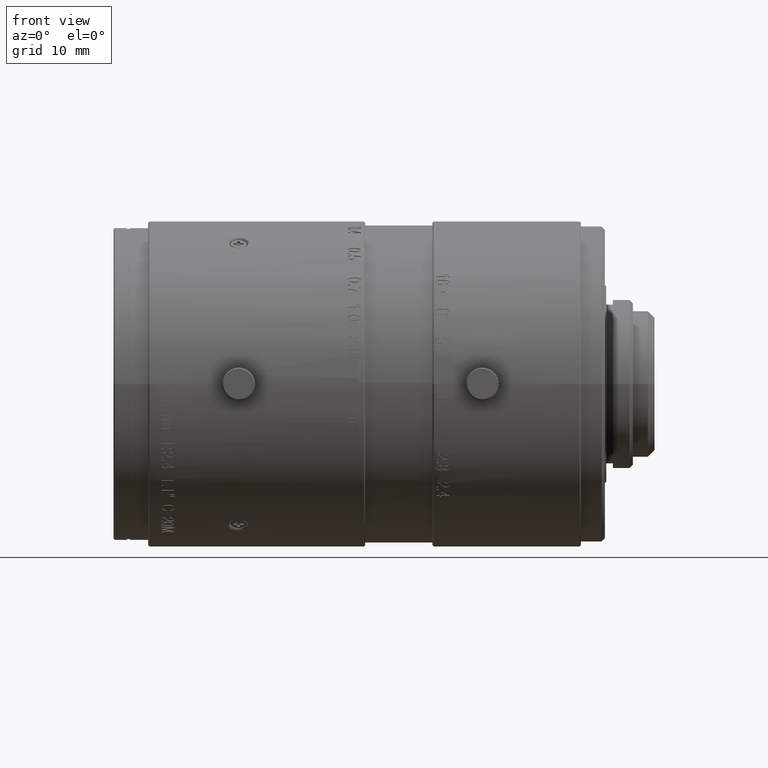
[diagram: clean part render]
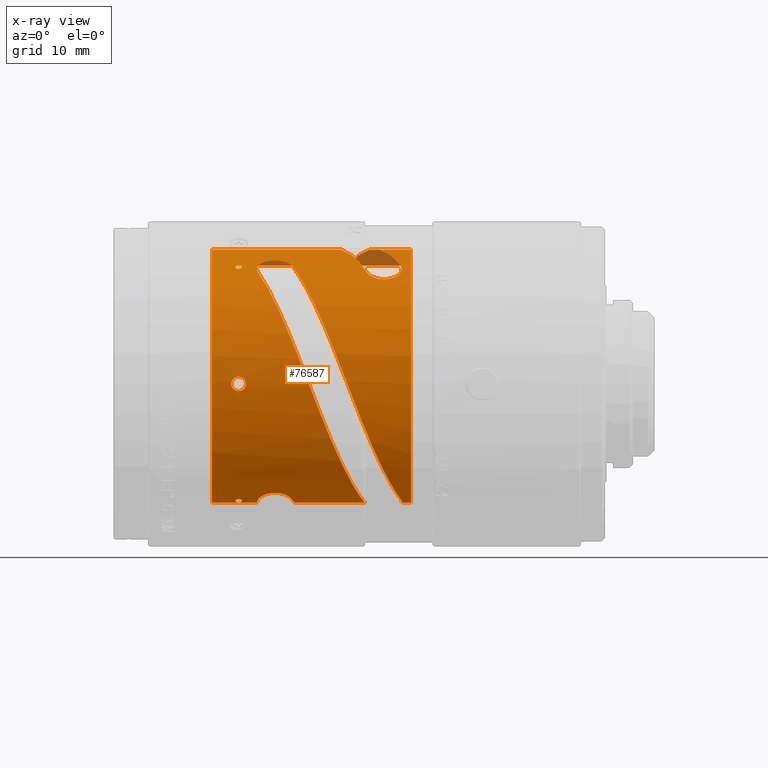
[diagram: x-ray — body ghosted, one internal face saturated and labeled with its STEP entity id]
A machine part, front view, then the same camera in x-ray: the body is ghosted and one INTERNAL B-rep face — a face not visible from any outside direction — is saturated and labeled: STEP entity #76587.
In plain terms, the highlighted cylindrical surface (partial cylindrical patch) has radius 20.25 mm, axis along (1, 0, 0).
Its self-contained STEP definition (entity closure, byte-faithful):
#112 = EDGE_CURVE ( 'NONE', #60766, #63340, #107111, .T. ) ;
#155 = CARTESIAN_POINT ( 'NONE',  ( -53.58698586789378027, -20.24507192438845493, -0.4489718886354276406 ) ) ;
#400 = CARTESIAN_POINT ( 'NONE',  ( -53.84037786304925532, -20.23483107006238768, 0.7867695502579682421 ) ) ;
#663 = DIRECTION ( 'NONE',  ( 0.000000000000000000, -1.000000000000000000, -1.623066920697000185E-11 ) ) ;
#868 = CARTESIAN_POINT ( 'NONE',  ( -38.06852752589999511, 9.672170118227999325, 17.79079904601999829 ) ) ;
#1104 = CARTESIAN_POINT ( 'NONE',  ( -53.48699874881496896, -20.25000257289885042, 0.004127416444607866219 ) ) ;
#1161 = CARTESIAN_POINT ( 'NONE',  ( -54.10230846502917501, -10.01398200027951191, 17.60067176602464301 ) ) ;
#1349 = CARTESIAN_POINT ( 'NONE',  ( -54.58699999998000862, -20.22164838448999546, 1.071184677948000097 ) ) ;
#2055 = CARTESIAN_POINT ( 'NONE',  ( -55.00466737315152699, -20.22557093491379021, -0.9916286536931721018 ) ) ;
#2761 = CARTESIAN_POINT ( 'NONE',  ( -55.64943617683286448, -20.24775742726880523, -0.2854463044495075819 ) ) ;
#2955 = CARTESIAN_POINT ( 'NONE',  ( -30.23394876047999702, -9.819385423967998960, 17.70993640501000144 ) ) ;
#3448 = CARTESIAN_POINT ( 'NONE',  ( -55.60792189533372465, -20.24608835557545916, 0.3984851060672910394 ) ) ;
#3531 = CARTESIAN_POINT ( 'NONE',  ( -34.92766313743350537, -11.93463776804769161, 16.35984698428901751 ) ) ;
#4119 = CARTESIAN_POINT ( 'NONE',  ( -55.68680644737698771, -20.24999569906953312, -0.02247329120616155945 ) ) ;
#4571 = CARTESIAN_POINT ( 'NONE',  ( -34.25275279190629618, -17.62569014094248487, -9.970036911645268063 ) ) ;
#4829 = CARTESIAN_POINT ( 'NONE',  ( -55.31939746311029893, -20.23430867000647027, -0.8001285610020126837 ) ) ;
#5147 = EDGE_CURVE ( 'NONE', #47027, #8257, #38515, .T. ) ;
#5181 = CARTESIAN_POINT ( 'NONE',  ( -39.00945981141959606, -16.23767903404768376, -12.22277169978144329 ) ) ;
#5456 = CARTESIAN_POINT ( 'NONE',  ( -53.73226033919999622, 9.672154331113999248, 17.79077811691999855 ) ) ;
#5520 = CARTESIAN_POINT ( 'NONE',  ( -55.09780892203727376, -20.22771281275427668, 0.9489058670277460417 ) ) ;
#5820 = ORIENTED_EDGE ( 'NONE', *, *, #84482, .T. ) ;
#5916 = CARTESIAN_POINT ( 'NONE',  ( -51.79452541669567012, -11.03016009466760217, 16.98549409628491347 ) ) ;
#6212 = CARTESIAN_POINT ( 'NONE',  ( -55.01127173781080160, -20.22576774822293899, 0.9881092063947694015 ) ) ;
#6606 = CARTESIAN_POINT ( 'NONE',  ( -51.84282457160358604, -10.73620215024878100, 17.17314497878923163 ) ) ;
#6918 = CARTESIAN_POINT ( 'NONE',  ( -54.72039870985197041, -20.22164838448597379, 1.071184677956332543 ) ) ;
#6948 = VERTEX_POINT ( 'NONE', #23813 ) ;
#7513 = CARTESIAN_POINT ( 'NONE',  ( -35.67523993761000156, -9.672107421885998590, -17.79075785971999935 ) ) ;
#7736 = CARTESIAN_POINT ( 'NONE',  ( -51.55531371372621408, -10.71897432366672653, -17.18297825371569587 ) ) ;
#7863 = CARTESIAN_POINT ( 'NONE',  ( -55.35304354144988537, 9.543441225554458285, 17.85995151374201839 ) ) ;
#7970 = CARTESIAN_POINT ( 'NONE',  ( -54.09006325437944440, -10.18154052561782308, -17.50427706831971619 ) ) ;
#8123 = CARTESIAN_POINT ( 'NONE',  ( -54.32450648778467439, -10.50908320569910082, 17.30984064671012135 ) ) ;
#8138 = VERTEX_POINT ( 'NONE', #68248 ) ;
#8257 = VERTEX_POINT ( 'NONE', #98511 ) ;
#8548 = CARTESIAN_POINT ( 'NONE',  ( -54.06007355191290031, 9.379881036147132534, 17.94678968189583301 ) ) ;
#8643 = CARTESIAN_POINT ( 'NONE',  ( -53.88103774653252742, -20.23321180322529500, -0.8287237890180965127 ) ) ;
#8661 = CARTESIAN_POINT ( 'NONE',  ( -55.03808614616426098, -10.31284365723017160, -17.42723819778431604 ) ) ;
#9204 = CARTESIAN_POINT ( 'NONE',  ( -54.08699856976392795, -10.08416876088114655, -17.56058851448009150 ) ) ;
#9361 = CARTESIAN_POINT ( 'NONE',  ( -53.55778836532051912, -20.24646874189476620, -0.3787401840965424205 ) ) ;
#9832 = CARTESIAN_POINT ( 'NONE',  ( -46.97489691551609070, -11.06112306915847654, -16.96225019165940040 ) ) ;
#10266 = CARTESIAN_POINT ( 'NONE',  ( -28.68700000003000028, -20.25000000000000000, 3.840638918006999958E-09 ) ) ;
#10361 = CARTESIAN_POINT ( 'NONE',  ( -54.98602965017767019, -9.861637278663842210, 17.68647385376121051 ) ) ;
#10522 = CARTESIAN_POINT ( 'NONE',  ( -46.68829377728154384, -10.67439891430585241, -17.20865816978835383 ) ) ;
#10595 = CARTESIAN_POINT ( 'NONE',  ( -54.99976210840421231, -9.869076584768523119, -17.68239626361953398 ) ) ;
#10743 = CARTESIAN_POINT ( 'NONE',  ( -53.53840163231143379, -20.24740130901742319, -0.3245485974835494725 ) ) ;
#10916 = CARTESIAN_POINT ( 'NONE',  ( -55.08699999999999619, -10.12498281354000085, 17.53702434922999842 ) ) ;
#10991 = CARTESIAN_POINT ( 'NONE',  ( -53.85497239373417955, -20.23433068319656769, 0.7995869896984646452 ) ) ;
#11010 = CARTESIAN_POINT ( 'NONE',  ( -33.95135394073435720, -17.22817379948558170, -10.64360855708697962 ) ) ;
#11047 = CARTESIAN_POINT ( 'NONE',  ( -54.32483125426030313, -9.735923099768236000, 17.75621644226320939 ) ) ;
#11710 = CARTESIAN_POINT ( 'NONE',  ( -53.48701228525150952, -20.25000255942591565, 0.006056145934462892240 ) ) ;
#12318 = CARTESIAN_POINT ( 'NONE',  ( -38.40532817929999254, -20.24688349944999999, 0.3552264054991000064 ) ) ;
#12405 = CARTESIAN_POINT ( 'NONE',  ( -54.17387429611068939, -20.22553094966566078, 0.9925644221137341905 ) ) ;
#12425 = CARTESIAN_POINT ( 'NONE',  ( -30.31483233864184612, -10.60767852135355049, -17.25061693268586183 ) ) ;
#12516 = VERTEX_POINT ( 'NONE', #12318 ) ;
#13338 = B_SPLINE_CURVE_WITH_KNOTS ( 'NONE', 3,
 ( #37487, #80646, #10522, #126608, #40274, #53659, #9832, #96829, #39583, #84153, #19040, #82747, #83440, #29631, #41684, #72835, #127311, #115293, #138636, #107469, #52276, #30322, #125899, #28922, #7736, #137233, #52972, #128000 ),
 .UNSPECIFIED., .F., .F.,
 ( 4, 2, 2, 2, 2, 2, 2, 2, 2, 2, 2, 2, 2, 4 ),
 ( 0.000000000000000000, 0.06249999999999882039, 0.09374999999999897304, 0.1249999999999991396, 0.1874999999999994449, 0.2499999999999997780, 0.3749999999999984457, 0.4999999999999972244, 0.5624999999999978906, 0.6249999999999986677, 0.6874999999999993339, 0.7500000000000000000, 0.8750000000000000000, 1.000000000000000000 ),
 .UNSPECIFIED. ) ;
#13368 = CARTESIAN_POINT ( 'NONE',  ( -55.35827828513112792, -20.23567319679098730, -0.7645629813641388051 ) ) ;
#13604 = CARTESIAN_POINT ( 'NONE',  ( -30.50444877491347029, -11.79845622417014361, 16.46080652979635417 ) ) ;
#13809 = B_SPLINE_CURVE_WITH_KNOTS ( 'NONE', 3,
 ( #118608, #95978, #107991, #1161, #23069, #44300, #53499, #11047, #109420, #42207, #128520, #107301, #10361, #66948, #37158, #134126, #80996, #122806 ),
 .UNSPECIFIED., .F., .F.,
 ( 4, 2, 2, 2, 2, 2, 2, 2, 4 ),
 ( 0.000000000000000000, 0.06250000000000002776, 0.1250000000000000555, 0.2500000000000004441, 0.5000000000000082157, 0.7500000000000158762, 0.8125000000000139888, 0.8750000000000122125, 1.000000000000000000 ),
 .UNSPECIFIED. ) ;
#14086 = CARTESIAN_POINT ( 'NONE',  ( -55.65110379268055851, -20.24816404223414779, 0.2732110805290204891 ) ) ;
#14368 = CARTESIAN_POINT ( 'NONE',  ( -58.58699999996999708, 9.672157460234000581, 17.79078047935000129 ) ) ;
#14436 = CARTESIAN_POINT ( 'NONE',  ( -45.01121094891500007, -20.16774550249791176, 2.514042518363147405 ) ) ;
#14516 = CARTESIAN_POINT ( 'NONE',  ( -34.31403764527691180, -17.70335950229507560, -9.831255184097964062 ) ) ;
#14727 = VERTEX_POINT ( 'NONE', #122798 ) ;
#14768 = CARTESIAN_POINT ( 'NONE',  ( -54.94556066009414508, -20.22454714530712749, -1.013741174998687766 ) ) ;
#15197 = CARTESIAN_POINT ( 'NONE',  ( -36.50524397645520480, -19.76623499471154233, -4.544611263485206720 ) ) ;
#15416 = CARTESIAN_POINT ( 'NONE',  ( -40.30187517671466679, 0.8837575971754110249, 20.31417814867884175 ) ) ;
#15450 = CARTESIAN_POINT ( 'NONE',  ( -54.86411023788566155, -20.22337568222284787, -1.038134476162589248 ) ) ;
#15918 = CARTESIAN_POINT ( 'NONE',  ( -29.15360295838998894, -9.672157552867952646, -17.79078042899231704 ) ) ;
#16231 = CARTESIAN_POINT ( 'NONE',  ( -32.58583322467389820, -12.77136630889980928, 15.71480556627606262 ) ) ;
#16613 = CARTESIAN_POINT ( 'NONE',  ( -28.68700000002000294, -9.672157471770999493, -17.79078047308000166 ) ) ;
#16919 = CARTESIAN_POINT ( 'NONE',  ( -31.89343832831000114, -12.64071423202999966, 15.82007760025000032 ) ) ;
#17022 = CARTESIAN_POINT ( 'NONE',  ( -54.63415192287552458, -9.688912291687261202, -17.78166116480397108 ) ) ;
#17870 = CARTESIAN_POINT ( 'NONE',  ( -54.08699999999999619, -10.15367771258777196, -17.52045728583735240 ) ) ;
#18019 = VECTOR ( 'NONE', #123641, 1000.000000000000114 ) ;
#18447 = EDGE_CURVE ( 'NONE', #59494, #40643, #53839, .T. ) ;
#18473 = CARTESIAN_POINT ( 'NONE',  ( -55.05867216711585144, 9.351534774876071765, 17.96139862900063378 ) ) ;
#18526 = CARTESIAN_POINT ( 'NONE',  ( -28.68699999997999939, 9.672158667655999409, 17.79077982292000115 ) ) ;
#18563 = CARTESIAN_POINT ( 'NONE',  ( -53.49372870015782411, -20.24959747884583194, -0.1373366704068358923 ) ) ;
#18580 = CARTESIAN_POINT ( 'NONE',  ( -54.18551638399385695, -10.38794776998228819, -17.38261409103830957 ) ) ;
#18662 = FACE_BOUND ( 'NONE', #107407, .T. ) ;
#19002 = CARTESIAN_POINT ( 'NONE',  ( -54.58699999999999619, -20.22160170557999948, -1.072065511424000084 ) ) ;
#19040 = CARTESIAN_POINT ( 'NONE',  ( -47.60026106487331532, -11.55704758480943894, -16.62840776465477433 ) ) ;
#19274 = CARTESIAN_POINT ( 'NONE',  ( -54.98606380144982353, -10.38615511981674189, -17.38364255200721331 ) ) ;
#19609 = CARTESIAN_POINT ( 'NONE',  ( -55.43051460478380221, -20.23831799894905714, 0.6875975944456902411 ) ) ;
#19860 = CARTESIAN_POINT ( 'NONE',  ( -54.02422902434584984, 9.400582309044565932, 17.93606443362906333 ) ) ;
#19950 = CARTESIAN_POINT ( 'NONE',  ( -54.16037988215730081, -20.22577035940841839, -0.9880231399362990885 ) ) ;
#20006 = CARTESIAN_POINT ( 'NONE',  ( -49.32248572307290857, -8.183439907634740607, 18.52280346916371556 ) ) ;
#20127 = CARTESIAN_POINT ( 'NONE',  ( -54.71927848195728927, -10.55477109102447386, 17.28176227212526683 ) ) ;
#20314 = CARTESIAN_POINT ( 'NONE',  ( -42.34376599891701431, -19.84151240629610768, -4.401449064626079988 ) ) ;
#20561 = EDGE_CURVE ( 'NONE', #90733, #65173, #30436, .T. ) ;
#20939 = CARTESIAN_POINT ( 'NONE',  ( -33.73858186591164099, -16.93370764926862293, -11.11069518868614203 ) ) ;
#21298 = VERTEX_POINT ( 'NONE', #10266 ) ;
#21543 = CARTESIAN_POINT ( 'NONE',  ( -54.08700000000000330, -10.12498281138999978, 17.53702435046999852 ) ) ;
#21555 = CARTESIAN_POINT ( 'NONE',  ( -54.08700000000000330, -10.12502556649000063, -17.53699966578000158 ) ) ;
#21613 = CARTESIAN_POINT ( 'NONE',  ( -54.16573212733529630, -20.22568025862699770, 0.9892976452669046683 ) ) ;
#21801 = CIRCLE ( 'NONE', #118958, 20.25000000000000711 ) ;
#22107 = CARTESIAN_POINT ( 'NONE',  ( -46.57415991789000742, -9.818858430891001632, 17.71023354304999842 ) ) ;
#22296 = CARTESIAN_POINT ( 'NONE',  ( -53.48706794225010697, -20.25000162226153577, 0.01230786144144024180 ) ) ;
#22823 = CARTESIAN_POINT ( 'NONE',  ( -47.62640629069997544, -8.586698639587387660, 18.33998794576995550 ) ) ;
#23011 = CARTESIAN_POINT ( 'NONE',  ( -53.49203925168411189, -20.24968663514228595, 0.1049910737905451891 ) ) ;
#23069 = CARTESIAN_POINT ( 'NONE',  ( -54.11089571506722251, -9.988741912770390030, 17.61500778274696799 ) ) ;
#23705 = CARTESIAN_POINT ( 'NONE',  ( -54.22848829240941626, -20.22459030381214973, 1.012881083791907555 ) ) ;
#23813 = CARTESIAN_POINT ( 'NONE',  ( -46.57376073884999812, -10.42773539424999996, -17.35885644552000073 ) ) ;
#23970 = CARTESIAN_POINT ( 'NONE',  ( -55.00011950954677786, -20.22548785097806245, -0.9934428786829480051 ) ) ;
#24409 = CARTESIAN_POINT ( 'NONE',  ( -34.30993986290484088, -17.69819538151698524, -9.840551043312379065 ) ) ;
#24660 = CARTESIAN_POINT ( 'NONE',  ( -55.68509446541854402, -20.24988552974513212, -0.06464225761173195139 ) ) ;
#24846 = CARTESIAN_POINT ( 'NONE',  ( -51.67982332390999289, -11.30400288310999990, 16.80123466942999855 ) ) ;
#24927 = VERTEX_POINT ( 'NONE', #51446 ) ;
#24945 = VERTEX_POINT ( 'NONE', #117239 ) ;
#25320 = LINE ( 'NONE', #81160, #18019 ) ;
#25373 = CARTESIAN_POINT ( 'NONE',  ( -54.91835017092328286, -20.22413557385354466, -1.022386188698118925 ) ) ;
#25727 = CARTESIAN_POINT ( 'NONE',  ( -36.34201486142171689, -11.19281476709540613, -16.96405806483901202 ) ) ;
#25811 = CARTESIAN_POINT ( 'NONE',  ( -34.31696568438540140, -17.70704694259926271, -9.824611487606947691 ) ) ;
#26055 = CARTESIAN_POINT ( 'NONE',  ( -55.68201099994679026, -20.24968303960888605, -0.1052887763576877272 ) ) ;
#26276 = CARTESIAN_POINT ( 'NONE',  ( -31.24845663825995246, -12.40568674124875237, 16.00678534441428624 ) ) ;
#26488 = CARTESIAN_POINT ( 'NONE',  ( -37.38196509655512045, -20.15096120814730796, -2.301369112091325775 ) ) ;
#26741 = CARTESIAN_POINT ( 'NONE',  ( -55.04089796381357758, -20.22624302642163485, -0.9769059665125261471 ) ) ;
#26768 = CARTESIAN_POINT ( 'NONE',  ( -54.08046846729000379, -9.672157342574854155, -17.79078054332124736 ) ) ;
#27722 = CIRCLE ( 'NONE', #64221, 20.25000000000000000 ) ;
#27935 = CARTESIAN_POINT ( 'NONE',  ( -28.68700000003000028, 0.000000000000000000, 9.228173781423002128E-13 ) ) ;
#28206 = ORIENTED_EDGE ( 'NONE', *, *, #135916, .T. ) ;
#28922 = CARTESIAN_POINT ( 'NONE',  ( -51.39848942542752752, -10.94699103710340182, -17.03771924345146971 ) ) ;
#28994 = CARTESIAN_POINT ( 'NONE',  ( -54.35949167796231052, -9.732834404722330746, -17.75778854586917532 ) ) ;
#29418 = CARTESIAN_POINT ( 'NONE',  ( -42.71748086311717429, -9.672157762806646630, -17.79078031485724409 ) ) ;
#29631 = CARTESIAN_POINT ( 'NONE',  ( -48.94161384035984241, -11.94684823270755025, -16.35050107972040578 ) ) ;
#29865 = CARTESIAN_POINT ( 'NONE',  ( -54.08700000000000330, -10.12502556649000063, -17.53699966578000158 ) ) ;
#30206 = CARTESIAN_POINT ( 'NONE',  ( -55.37747634928580709, -20.23632129430400894, 0.7448083985015249153 ) ) ;
#30322 = CARTESIAN_POINT ( 'NONE',  ( -50.97940885039174219, -11.34201863678694089, -16.77591149774586654 ) ) ;
#30436 = CIRCLE ( 'NONE', #102708, 20.25000000000000000 ) ;
#30551 = CARTESIAN_POINT ( 'NONE',  ( -53.72922888632181326, -20.23884692761780002, -0.6714587878449755909 ) ) ;
#30607 = CARTESIAN_POINT ( 'NONE',  ( -50.66078358691486727, -8.607088348365685704, 18.33129193123405187 ) ) ;
#30695 = EDGE_CURVE ( 'NONE', #79223, #55631, #75263, .T. ) ;
#30897 = ORIENTED_EDGE ( 'NONE', *, *, #18447, .F. ) ;
#31286 = CARTESIAN_POINT ( 'NONE',  ( -47.34005220529471103, -8.782857592247566458, 18.24813329974550768 ) ) ;
#31408 = CARTESIAN_POINT ( 'NONE',  ( -54.20857454193922109, -10.40792315457371409, 17.37061290436654204 ) ) ;
#31502 = CARTESIAN_POINT ( 'NONE',  ( -33.19957022003491431, -16.13339862344156472, -12.25796765934027555 ) ) ;
#32442 = EDGE_CURVE ( 'NONE', #49646, #63118, #47895, .T. ) ;
#32718 = CARTESIAN_POINT ( 'NONE',  ( -48.26564597375506338, -8.304793506746197096, 18.46935180747778560 ) ) ;
#32802 = ORIENTED_EDGE ( 'NONE', *, *, #48221, .T. ) ;
#32906 = CARTESIAN_POINT ( 'NONE',  ( -54.13393300006044484, -20.22626984841394560, 0.9763681629668459205 ) ) ;
#33604 = CARTESIAN_POINT ( 'NONE',  ( -53.90278775961660074, -20.23274443705136605, 0.8390133345811876531 ) ) ;
#33617 = EDGE_LOOP ( 'NONE', ( #60830, #60998 ) ) ;
#34433 = VERTEX_POINT ( 'NONE', #121050 ) ;
#34459 = B_SPLINE_CURVE_WITH_KNOTS ( 'NONE', 3,
 ( #22107, #96423, #139605, #31286, #22823, #32718, #131088, #20006, #128275, #66005 ),
 .UNSPECIFIED., .F., .F.,
 ( 4, 2, 2, 2, 4 ),
 ( 0.000000000000000000, 0.2500000000000000000, 0.5000000000000000000, 0.7500000000000000000, 1.000000000000000000 ),
 .UNSPECIFIED. ) ;
#35288 = ORIENTED_EDGE ( 'NONE', *, *, #77858, .T. ) ;
#35720 = EDGE_CURVE ( 'NONE', #24945, #137577, #96400, .T. ) ;
#35827 = CARTESIAN_POINT ( 'NONE',  ( -30.23396391597999866, -10.42759891337000155, -17.35878118473000242 ) ) ;
#36648 = CARTESIAN_POINT ( 'NONE',  ( -43.13654071289989389, 8.055909452329673925, 18.66947198889990389 ) ) ;
#36651 = CARTESIAN_POINT ( 'NONE',  ( -46.57415991789000742, -9.818858430891001632, 17.71023354304999842 ) ) ;
#37158 = CARTESIAN_POINT ( 'NONE',  ( -55.03810789468710141, -9.936117624097231982, 17.64474258285675035 ) ) ;
#37375 = CARTESIAN_POINT ( 'NONE',  ( -55.68700112540657443, -20.25000236800773123, -0.005003706150306269293 ) ) ;
#37487 = CARTESIAN_POINT ( 'NONE',  ( -46.57376073884999812, -10.42773539424999996, -17.35885644552000073 ) ) ;
#37493 = ORIENTED_EDGE ( 'NONE', *, *, #106537, .T. ) ;
#37684 = VERTEX_POINT ( 'NONE', #82171 ) ;
#37803 = CARTESIAN_POINT ( 'NONE',  ( -35.43456556738033214, -18.94647465122174523, -7.202453377417000979 ) ) ;
#38057 = CARTESIAN_POINT ( 'NONE',  ( -55.02534905900320439, -20.22604671171806245, 0.9822776189555311177 ) ) ;
#38515 = B_SPLINE_CURVE_WITH_KNOTS ( 'NONE', 3,
 ( #16613, #15918, #59755, #134796 ),
 .UNSPECIFIED., .F., .F.,
 ( 4, 4 ),
 ( 0.000000000000000000, 1.000000000000000000 ),
 .UNSPECIFIED. ) ;
#38599 = CARTESIAN_POINT ( 'NONE',  ( -30.23396391597999866, -10.42759891337000155, -17.35878118473000242 ) ) ;
#38627 = CARTESIAN_POINT ( 'NONE',  ( -50.01391521147999697, -8.334826601122998113, 18.45516662530999952 ) ) ;
#38779 = CARTESIAN_POINT ( 'NONE',  ( -55.01354371573951596, -20.22581162766156737, 0.9871788555002483090 ) ) ;
#39313 = B_SPLINE_CURVE_WITH_KNOTS ( 'NONE', 3,
 ( #75428, #12425, #96626, #52771, #42166, #118572, #107955, #128476, #31502, #117877, #20939, #11010, #122762, #112836, #4571, #124118, #102223, #24409, #14516, #45656, #25811, #90190, #99436, #80272, #132689, #37803, #57659, #15197, #26488, #78201, #100818 ),
 .UNSPECIFIED., .F., .F.,
 ( 4, 2, 2, 2, 2, 2, 1, 1, 1, 1, 1, 1, 1, 2, 2, 2, 2, 2, 4 ),
 ( 0.000000000000000000, 0.1250000000000414113, 0.2500000000000828226, 0.3750000000001242340, 0.4375000000001451617, 0.4687500000001557643, 0.4843750000001610934, 0.4921875000001636469, 0.4960937500001648126, 0.4980468750001652567, 0.4990234375001653677, 0.4995117187501655898, 0.4997558593751655898, 0.4998779296876655898, 0.5000000000001656453, 0.6250000000001242340, 0.7500000000000828226, 0.8750000000000414113, 1.000000000000000000 ),
 .UNSPECIFIED. ) ;
#39583 = CARTESIAN_POINT ( 'NONE',  ( -47.23650085512421271, -11.31170317539403136, -16.79638296579911128 ) ) ;
#39897 = FACE_BOUND ( 'NONE', #119609, .T. ) ;
#40022 = CARTESIAN_POINT ( 'NONE',  ( -28.68699999997999939, 9.672158667655999409, 17.79077982292000115 ) ) ;
#40158 = CARTESIAN_POINT ( 'NONE',  ( -55.56145225813125421, -20.24382444360606570, 0.5014176815743065507 ) ) ;
#40274 = CARTESIAN_POINT ( 'NONE',  ( -46.84183805092241926, -10.90126840547672948, -17.06543240593236632 ) ) ;
#40405 = CARTESIAN_POINT ( 'NONE',  ( -55.03629773567573835, 9.341198041975681932, 17.96678045871069784 ) ) ;
#40643 = VERTEX_POINT ( 'NONE', #19002 ) ;
#40687 = CARTESIAN_POINT ( 'NONE',  ( -54.13587724731554829, -10.31265388836679264, 17.42735044447966786 ) ) ;
#40729 = CARTESIAN_POINT ( 'NONE',  ( -34.94135168392666912, 9.672158410437152298, 17.79077996275845663 ) ) ;
#40873 = CARTESIAN_POINT ( 'NONE',  ( -54.58699999998000862, -20.22164838448999546, 1.071184677948000097 ) ) ;
#41141 = EDGE_CURVE ( 'NONE', #129427, #12516, #39313, .T. ) ;
#41383 = CARTESIAN_POINT ( 'NONE',  ( -54.18797276438622390, -10.38606757621839449, 17.38369488430507914 ) ) ;
#41569 = CARTESIAN_POINT ( 'NONE',  ( -47.01179466141349650, -18.87070861114900211, 7.546835426239048239 ) ) ;
#41684 = CARTESIAN_POINT ( 'NONE',  ( -49.25951993220930802, -11.94919973159748139, -16.34876092088588706 ) ) ;
#41700 = CARTESIAN_POINT ( 'NONE',  ( -39.76680013573166406, -19.95237976709429617, 3.884175338755466278 ) ) ;
#41812 = CARTESIAN_POINT ( 'NONE',  ( -54.66427239123227366, 9.246638900410017570, 18.01562026419750850 ) ) ;
#41903 = CARTESIAN_POINT ( 'NONE',  ( -53.54682001516390244, -20.24699520027905564, -0.3496949108991440625 ) ) ;
#42166 = CARTESIAN_POINT ( 'NONE',  ( -31.15726472461225782, -12.41672813314880841, -16.02084971087387899 ) ) ;
#42207 = CARTESIAN_POINT ( 'NONE',  ( -54.71961118782674305, -9.688807815186342154, 17.78171822780119982 ) ) ;
#42480 = VERTEX_POINT ( 'NONE', #75280 ) ;
#43305 = CARTESIAN_POINT ( 'NONE',  ( -54.16269820896859244, -20.22572554693483582, -0.9889726784676607929 ) ) ;
#44242 = CARTESIAN_POINT ( 'NONE',  ( -53.48702198210511227, -20.24995882612300591, -0.06832051009178712053 ) ) ;
#44300 = CARTESIAN_POINT ( 'NONE',  ( -54.14942951807557847, -9.907639088376791747, 17.66083362809870749 ) ) ;
#44371 = EDGE_CURVE ( 'NONE', #137577, #122717, #63823, .T. ) ;
#44441 = VERTEX_POINT ( 'NONE', #121138 ) ;
#44689 = CARTESIAN_POINT ( 'NONE',  ( -32.84547501562004612, -3.472201747691262774, 20.02193961891266838 ) ) ;
#44931 = CARTESIAN_POINT ( 'NONE',  ( -54.30999505011128292, -20.22341947873820800, 1.037283488354251437 ) ) ;
#45173 = CARTESIAN_POINT ( 'NONE',  ( -41.01058527357906058, 2.733091832864721571, 20.14887268386918606 ) ) ;
#45637 = CARTESIAN_POINT ( 'NONE',  ( -54.52123932728974864, -20.22164838448930624, 1.071184677947168096 ) ) ;
#45656 = CARTESIAN_POINT ( 'NONE',  ( -34.31579439450436553, -17.70557205253146549, -9.827269234250632479 ) ) ;
#45874 = CARTESIAN_POINT ( 'NONE',  ( -41.12827209216333557, -18.97819917553522018, 7.280949971414633737 ) ) ;
#46592 = CARTESIAN_POINT ( 'NONE',  ( -55.60560138679836228, -20.24597757541924636, 0.4040589555884348538 ) ) ;
#47027 = VERTEX_POINT ( 'NONE', #113766 ) ;
#47232 = CARTESIAN_POINT ( 'NONE',  ( -43.84511967131000176, 9.672166636925998873, 17.79080192969000151 ) ) ;
#47263 = CARTESIAN_POINT ( 'NONE',  ( -55.68698770631331030, -20.25000224560927720, -0.006885607939229118277 ) ) ;
#47895 = B_SPLINE_CURVE_WITH_KNOTS ( 'NONE', 3,
 ( #47232, #36648, #57192, #45173, #15416, #68518, #110282, #77730, #67824, #121574 ),
 .UNSPECIFIED., .F., .F.,
 ( 4, 2, 2, 2, 4 ),
 ( 0.000000000000000000, 0.2500000000000000000, 0.5000000000000000000, 0.7500000000000000000, 1.000000000000000000 ),
 .UNSPECIFIED. ) ;
#47978 = CARTESIAN_POINT ( 'NONE',  ( -55.57872922411083039, -20.24426785151877795, -0.4837617811707674575 ) ) ;
#48221 = EDGE_CURVE ( 'NONE', #8257, #129427, #71700, .T. ) ;
#48278 = B_SPLINE_CURVE_WITH_KNOTS ( 'NONE', 3,
 ( #80051, #67382, #26276, #110544, #13604, #112616, #70149, #59516, #56750, #89297 ),
 .UNSPECIFIED., .F., .F.,
 ( 4, 2, 2, 2, 4 ),
 ( 0.000000000000000000, 0.2500000000000000000, 0.5000000000000000000, 0.7500000000000000000, 1.000000000000000000 ),
 .UNSPECIFIED. ) ;
#48338 = CARTESIAN_POINT ( 'NONE',  ( -37.00887609892119201, -12.60679035117748903, -15.94136774179668059 ) ) ;
#49349 = CARTESIAN_POINT ( 'NONE',  ( -55.12599467029217237, -20.22843667503720155, 0.9343139746518409616 ) ) ;
#49596 = CARTESIAN_POINT ( 'NONE',  ( -54.00668023919941874, 9.411428480180171974, 17.93041053888154934 ) ) ;
#49646 = VERTEX_POINT ( 'NONE', #91115 ) ;
#49835 = EDGE_CURVE ( 'NONE', #34433, #125927, #13809, .T. ) ;
#49989 = CARTESIAN_POINT ( 'NONE',  ( -50.43654678323667184, 9.672158502919456780, 17.79077991247895341 ) ) ;
#50309 = CARTESIAN_POINT ( 'NONE',  ( -54.47364511493165651, 9.252116256762759505, 18.01274153466862771 ) ) ;
#50419 = CARTESIAN_POINT ( 'NONE',  ( -54.11092312733293852, -10.26078126414079428, -17.45794463986925038 ) ) ;
#50548 = DIRECTION ( 'NONE',  ( 1.000000000000000000, -2.740879571499295071E-14, -2.731092400656594806E-12 ) ) ;
#50764 = CARTESIAN_POINT ( 'NONE',  ( -55.44433171522787518, -20.23885902019184968, 0.6711313623440381404 ) ) ;
#50914 = ORIENTED_EDGE ( 'NONE', *, *, #44371, .T. ) ;
#51118 = CARTESIAN_POINT ( 'NONE',  ( -54.32476191693733369, -10.50942712473286988, -17.30963221876411495 ) ) ;
#51446 = CARTESIAN_POINT ( 'NONE',  ( -53.73226033919999622, 9.672154331113999248, 17.79077811691999855 ) ) ;
#51447 = CARTESIAN_POINT ( 'NONE',  ( -55.50491649811536377, -20.24133680373845223, 0.5908941101088993619 ) ) ;
#51692 = CARTESIAN_POINT ( 'NONE',  ( -54.40759018732580898, 9.260117617272472401, 18.00855000579721832 ) ) ;
#51808 = CARTESIAN_POINT ( 'NONE',  ( -55.07477153841644935, -10.23638485979843260, -17.47233318720770967 ) ) ;
#52276 = CARTESIAN_POINT ( 'NONE',  ( -50.73796819192335050, -11.50791566755210660, -16.66254693394538222 ) ) ;
#52292 = CARTESIAN_POINT ( 'NONE',  ( -38.40532817929999254, -20.24688349944999999, 0.3552264054991000064 ) ) ;
#52309 = DIRECTION ( 'NONE',  ( 1.000000000000000000, 6.840263945224380603E-23, -4.214406601476999716E-12 ) ) ;
#52347 = CARTESIAN_POINT ( 'NONE',  ( -54.48299575357745539, -9.694736733092021552, -17.77859590833216430 ) ) ;
#52749 = ORIENTED_EDGE ( 'NONE', *, *, #111070, .F. ) ;
#52771 = CARTESIAN_POINT ( 'NONE',  ( -30.88178679120427361, -11.83592089511540912, -16.43996207705306034 ) ) ;
#52972 = CARTESIAN_POINT ( 'NONE',  ( -51.82762735634046436, -9.945239877523786021, -17.64231616221948684 ) ) ;
#53499 = CARTESIAN_POINT ( 'NONE',  ( -54.18557092310484791, -9.859831467820315609, 17.68752254170713911 ) ) ;
#53544 = CARTESIAN_POINT ( 'NONE',  ( -51.67982332390999289, -11.30400288310999990, 16.80123466942999855 ) ) ;
#53659 = CARTESIAN_POINT ( 'NONE',  ( -46.92913250655831803, -11.00944387367534105, -16.99584601136655593 ) ) ;
#53839 = B_SPLINE_CURVE_WITH_KNOTS ( 'NONE', 3,
 ( #65477, #45637, #139792, #88100, #44931, #75409, #23705, #109361, #86021, #12405, #118553, #21613, #32906, #64777, #98020, #107934, #33604, #66887, #10991, #400, #54134, #130578, #97314, #86726, #76791, #129888, #119950, #76097, #23011, #98712, #108649, #119238, #22296, #11710, #1104, #44242, #18563, #105591, #64532, #10743, #41903, #9361, #138858, #73743, #127528, #155, #72350, #126843, #116892, #30551, #106299, #107694, #115522, #139549, #95679, #8643, #116215, #61717, #85072, #107004, #53887, #126116, #97058, #117608, #19950, #43305, #63111, #104906, #96366, #128928 ),
 .UNSPECIFIED., .F., .F.,
 ( 4, 2, 2, 1, 1, 1, 2, 2, 2, 2, 2, 1, 2, 2, 2, 2, 2, 1, 1, 2, 2, 2, 2, 1, 1, 2, 2, 2, 2, 2, 2, 2, 2, 2, 2, 1, 1, 2, 2, 4 ),
 ( 0.000000000000000000, 0.06250000000013328227, 0.09375000000019696744, 0.1093750000002260692, 0.1171875000002405576, 0.1210937500002477879, 0.1230468750002513822, 0.1250000000002549627, 0.1875000000002455813, 0.2187500000002409184, 0.2343750000002404466, 0.2421875000002402523, 0.2460937500002385869, 0.2500000000002369216, 0.3750000000001848521, 0.4375000000001588174, 0.4687500000001452172, 0.4843750000001385003, 0.4921875000001351141, 0.4960937500001335043, 0.5000000000001318945, 0.5625000000001060263, 0.5937500000000925926, 0.6093750000000858202, 0.6171875000000824896, 0.6210937500000819345, 0.6250000000000813793, 0.6875000000000701661, 0.7187500000000630607, 0.7343750000000578426, 0.7421875000000552891, 0.7500000000000527356, 0.8125000000000349720, 0.8437500000000287548, 0.8593750000000290878, 0.8671875000000250910, 0.8710937500000230926, 0.8730468750000220934, 0.8750000000000212053, 1.000000000000000000 ),
 .UNSPECIFIED. ) ;
#53887 = CARTESIAN_POINT ( 'NONE',  ( -54.12434738754556918, -20.22652772204566318, -0.9725737512035840249 ) ) ;
#54134 = CARTESIAN_POINT ( 'NONE',  ( -53.82563693809131422, -20.23535189863398998, 0.7730829339370984821 ) ) ;
#55089 = CARTESIAN_POINT ( 'NONE',  ( -45.21268796145835012, -12.79648900577995896, 15.79348427540336353 ) ) ;
#55631 = VERTEX_POINT ( 'NONE', #137163 ) ;
#56476 = CARTESIAN_POINT ( 'NONE',  ( -43.85121600502668571, -15.33832987515646984, 13.33866234198038292 ) ) ;
#56750 = CARTESIAN_POINT ( 'NONE',  ( -30.11954821491341150, -10.10753041335150471, 17.55018170961929513 ) ) ;
#57192 = CARTESIAN_POINT ( 'NONE',  ( -42.42791804167167413, 6.319332068946290626, 19.32648192506906426 ) ) ;
#57226 = CARTESIAN_POINT ( 'NONE',  ( -55.61621179164355055, -20.24648451820818451, 0.3778893052884513271 ) ) ;
#57313 = CARTESIAN_POINT ( 'NONE',  ( -35.03059289817552724, -11.82000799592075069, 16.44302823206619024 ) ) ;
#57412 = CARTESIAN_POINT ( 'NONE',  ( -34.80411970697505097, 1.610628368817631051, 20.25685383611180868 ) ) ;
#57555 = ORIENTED_EDGE ( 'NONE', *, *, #49835, .T. ) ;
#57659 = CARTESIAN_POINT ( 'NONE',  ( -36.11576407062025140, -19.50212609217291160, -5.523704757518723696 ) ) ;
#57904 = CARTESIAN_POINT ( 'NONE',  ( -55.18290515670619101, -20.22999820832442097, -0.9018920188778957181 ) ) ;
#57927 = CARTESIAN_POINT ( 'NONE',  ( -58.58700000002999531, -9.672157471771999582, -17.79078047308000166 ) ) ;
#59075 = DIRECTION ( 'NONE',  ( 2.412507779281917116E-12, 0.4776374650693828716, 0.8785570282924689556 ) ) ;
#59284 = CARTESIAN_POINT ( 'NONE',  ( -54.72184398464766986, -20.22193983762149117, -1.066330341214593469 ) ) ;
#59375 = CARTESIAN_POINT ( 'NONE',  ( -34.57269211887265215, -12.25527562790840364, 16.12269851171316759 ) ) ;
#59494 = VERTEX_POINT ( 'NONE', #1349 ) ;
#59516 = CARTESIAN_POINT ( 'NONE',  ( -30.07129866336509139, -10.40787442278671016, 17.37408014962724323 ) ) ;
#59755 = CARTESIAN_POINT ( 'NONE',  ( -29.62020591675999270, -9.672157633963497148, -17.79078038490382596 ) ) ;
#60220 = CARTESIAN_POINT ( 'NONE',  ( -53.83043144541642988, 9.548636012998226619, 17.85768156108469995 ) ) ;
#60593 = CARTESIAN_POINT ( 'NONE',  ( -47.14083540802507599, 9.672158832384122107, 17.79077973336185536 ) ) ;
#60766 = VERTEX_POINT ( 'NONE', #21555 ) ;
#60830 = ORIENTED_EDGE ( 'NONE', *, *, #112, .F. ) ;
#60998 = ORIENTED_EDGE ( 'NONE', *, *, #65141, .T. ) ;
#61112 = FACE_BOUND ( 'NONE', #33617, .T. ) ;
#61380 = CARTESIAN_POINT ( 'NONE',  ( -55.01129064978720606, -20.22576787348502592, 0.9881034393113725667 ) ) ;
#61414 = DIRECTION ( 'NONE',  ( 1.000000000000000000, -2.719361138920099777E-14, -2.713385072183985175E-12 ) ) ;
#61717 = CARTESIAN_POINT ( 'NONE',  ( -54.04693340911290989, -20.22842178585206696, -0.9345967245338817619 ) ) ;
#61779 = CARTESIAN_POINT ( 'NONE',  ( -51.40758135423857311, -9.287898813411768373, 17.99713614642109860 ) ) ;
#61897 = CARTESIAN_POINT ( 'NONE',  ( -55.06312001095999875, -10.26058690409713314, 17.45805891503703222 ) ) ;
#62077 = CARTESIAN_POINT ( 'NONE',  ( -55.06059704023946466, -20.22682164679360639, 0.9667209060202440751 ) ) ;
#62436 = CARTESIAN_POINT ( 'NONE',  ( -55.02206542270039336, -10.33920637324904135, -17.41160699419263125 ) ) ;
#62589 = CARTESIAN_POINT ( 'NONE',  ( -54.45442897500605284, -10.55497484034219724, 17.28163783134924714 ) ) ;
#63111 = CARTESIAN_POINT ( 'NONE',  ( -54.16272900341082419, -20.22572472844453273, -0.9889871819979312306 ) ) ;
#63118 = VERTEX_POINT ( 'NONE', #110170 ) ;
#63293 = EDGE_CURVE ( 'NONE', #42480, #6948, #82796, .T. ) ;
#63340 = VERTEX_POINT ( 'NONE', #66838 ) ;
#63678 = CARTESIAN_POINT ( 'NONE',  ( -55.08699999999999619, -10.12502555810999993, -17.53699967062000198 ) ) ;
#63823 = B_SPLINE_CURVE_WITH_KNOTS ( 'NONE', 3,
 ( #93106, #40729, #125647, #40022 ),
 .UNSPECIFIED., .F., .F.,
 ( 4, 4 ),
 ( 0.000000000000000000, 1.000000000000000000 ),
 .UNSPECIFIED. ) ;
#64221 = AXIS2_PLACEMENT_3D ( 'NONE', #106093, #52309, #663 ) ;
#64532 = CARTESIAN_POINT ( 'NONE',  ( -53.52287859162595396, -20.24815336148601830, -0.2739956493442727847 ) ) ;
#64777 = CARTESIAN_POINT ( 'NONE',  ( -54.08545236131851652, -20.22741770999110500, 0.9558016363106313085 ) ) ;
#64788 = ORIENTED_EDGE ( 'NONE', *, *, #87796, .T. ) ;
#65071 = CARTESIAN_POINT ( 'NONE',  ( -55.03703994215010908, -9.927364945245654937, -17.64963446157323901 ) ) ;
#65141 = EDGE_CURVE ( 'NONE', #60766, #63340, #126378, .T. ) ;
#65173 = VERTEX_POINT ( 'NONE', #99179 ) ;
#65421 = VERTEX_POINT ( 'NONE', #38627 ) ;
#65477 = CARTESIAN_POINT ( 'NONE',  ( -54.58699999998000862, -20.22164838448999546, 1.071184677948000097 ) ) ;
#65646 = B_SPLINE_CURVE_WITH_KNOTS ( 'NONE', 3,
 ( #104112, #135978, #60220, #94176, #125339, #49596, #19860, #8548, #106200, #72959, #84285, #95581, #51692, #50309, #116127, #71555, #114722, #138767, #41812, #94870, #137363, #138068, #104817, #115428, #40405, #18473, #126028, #7863, #83578 ),
 .UNSPECIFIED., .F., .F.,
 ( 4, 2, 2, 2, 2, 2, 2, 1, 2, 2, 2, 2, 2, 2, 4 ),
 ( 0.000000000000000000, 0.1249999999999665268, 0.1874999999999506228, 0.2187499999999480971, 0.2499999999999455991, 0.3749999999999283351, 0.4374999999999196754, 0.4687499999999202305, 0.4843749999999205080, 0.4999999999999208411, 0.6249999999999233946, 0.6874999999999250599, 0.7187499999999261702, 0.7499999999999273914, 1.000000000000000000 ),
 .UNSPECIFIED. ) ;
#65945 = AXIS2_PLACEMENT_3D ( 'NONE', #115213, #61414, #104610 ) ;
#66005 = CARTESIAN_POINT ( 'NONE',  ( -50.01391521147999697, -8.334826601122998113, 18.45516662530999952 ) ) ;
#66564 = CARTESIAN_POINT ( 'NONE',  ( -44.63700000000000045, -1.552535877635999852E-12, -2.881250793507000266E-12 ) ) ;
#66838 = CARTESIAN_POINT ( 'NONE',  ( -55.08699999999999619, -10.12502555810999993, -17.53699967062000198 ) ) ;
#66887 = CARTESIAN_POINT ( 'NONE',  ( -53.88388456144559768, -20.23335714614819381, 0.8241224097005673821 ) ) ;
#66928 = EDGE_CURVE ( 'NONE', #125927, #34433, #83939, .T. ) ;
#66948 = CARTESIAN_POINT ( 'NONE',  ( -55.02205779079653780, -9.909350159647384970, 17.65978557653540548 ) ) ;
#67254 = CYLINDRICAL_SURFACE ( 'NONE', #121109, 20.25000000000000711 ) ;
#67382 = CARTESIAN_POINT ( 'NONE',  ( -31.55893822437085561, -12.54927392544648690, 15.89314076890858907 ) ) ;
#67824 = CARTESIAN_POINT ( 'NONE',  ( -36.04900261607488687, -9.777035560167242068, 17.82852873628270984 ) ) ;
#67860 = CARTESIAN_POINT ( 'NONE',  ( -55.68619663684890497, -20.24995889253521142, -0.04478660741192545119 ) ) ;
#68053 = CARTESIAN_POINT ( 'NONE',  ( -31.53971188805003578, -6.751679636932219175, 19.16635263059470873 ) ) ;
#68248 = CARTESIAN_POINT ( 'NONE',  ( -31.89343832831000114, -12.64071423202999966, 15.82007760025000032 ) ) ;
#68518 = CARTESIAN_POINT ( 'NONE',  ( -38.88436755734964834, -2.791485006677434821, 20.14086574118239525 ) ) ;
#68553 = CARTESIAN_POINT ( 'NONE',  ( -54.58699999999999619, -20.22160170557999948, -1.072065511424000084 ) ) ;
#69241 = CARTESIAN_POINT ( 'NONE',  ( -55.68697989952980976, -20.24996188338629821, 0.06751653811345843803 ) ) ;
#69742 = B_SPLINE_CURVE_WITH_KNOTS ( 'NONE', 3,
 ( #110346, #26768, #81246, #57927 ),
 .UNSPECIFIED., .F., .F.,
 ( 4, 4 ),
 ( 0.000000000000000000, 1.000000000000000000 ),
 .UNSPECIFIED. ) ;
#69918 = CARTESIAN_POINT ( 'NONE',  ( -55.62717175407841097, -20.24700939830997015, 0.3488676480107752997 ) ) ;
#70149 = CARTESIAN_POINT ( 'NONE',  ( -30.11163776424064409, -10.99606306499875963, 17.00791310292778746 ) ) ;
#70717 = CARTESIAN_POINT ( 'NONE',  ( -32.22892739012574026, -12.73248223668314161, 15.74675185946112776 ) ) ;
#70820 = CARTESIAN_POINT ( 'NONE',  ( -54.13695721189407095, -9.927370510456157149, -17.64963134138253409 ) ) ;
#70900 = ORIENTED_EDGE ( 'NONE', *, *, #35720, .T. ) ;
#71555 = CARTESIAN_POINT ( 'NONE',  ( -54.54126758147849330, 9.247494810836162316, 18.01516930687655815 ) ) ;
#71700 = B_SPLINE_CURVE_WITH_KNOTS ( 'NONE', 3,
 ( #92348, #124205, #137631, #38599 ),
 .UNSPECIFIED., .F., .F.,
 ( 4, 4 ),
 ( 0.000000000000000000, 1.000000000000000000 ),
 .UNSPECIFIED. ) ;
#71704 = CARTESIAN_POINT ( 'NONE',  ( -50.34955515882137433, -8.440969551775872048, 18.40722948521268520 ) ) ;
#71771 = CARTESIAN_POINT ( 'NONE',  ( -55.44173787873999970, 9.672153747993998962, 17.79078112111000110 ) ) ;
#72350 = CARTESIAN_POINT ( 'NONE',  ( -53.61204538859231405, -20.24382494148121481, -0.5013416893895763504 ) ) ;
#72414 = CARTESIAN_POINT ( 'NONE',  ( -51.80210729682611515, -10.14143049847773526, 17.53095355415848999 ) ) ;
#72617 = CARTESIAN_POINT ( 'NONE',  ( -46.23860132589000216, -9.672170946862001628, -17.79080150797000215 ) ) ;
#72714 = CARTESIAN_POINT ( 'NONE',  ( -55.40058126810868799, -20.23717921329418346, 0.7207786965162290560 ) ) ;
#72835 = CARTESIAN_POINT ( 'NONE',  ( -49.73506537604009026, -11.88433528117995763, -16.39590770262744357 ) ) ;
#72959 = CARTESIAN_POINT ( 'NONE',  ( -54.16530240767375659, 9.326447151770949517, 17.97411129979014532 ) ) ;
#73069 = CARTESIAN_POINT ( 'NONE',  ( -54.96547884625701386, -10.40800011566133598, -17.37056678249722097 ) ) ;
#73743 = CARTESIAN_POINT ( 'NONE',  ( -53.56608583832210968, -20.24607137903533172, -0.3993546684433854632 ) ) ;
#73910 = CARTESIAN_POINT ( 'NONE',  ( -54.98842567983400187, -10.38787893897511516, 17.38265519802757808 ) ) ;
#74095 = CARTESIAN_POINT ( 'NONE',  ( -50.34610084891102133, -14.05150870544102304, 14.68378260321524209 ) ) ;
#74761 = ORIENTED_EDGE ( 'NONE', *, *, #5147, .T. ) ;
#75263 = B_SPLINE_CURVE_WITH_KNOTS ( 'NONE', 3,
 ( #53544, #88030, #74095, #78794, #121969, #41569, #111392, #14436, #77431, #117244, #20314, #106656, #102825, #5181, #92904, #48338, #25727, #91498 ),
 .UNSPECIFIED., .F., .F.,
 ( 4, 2, 2, 2, 2, 2, 2, 2, 4 ),
 ( 0.000000000000000000, 0.1250000000000000555, 0.2500000000000000555, 0.3750000000000000555, 0.5000000000000000000, 0.6250000000000000000, 0.7500000000000001110, 0.8750000000000001110, 1.000000000000000000 ),
 .UNSPECIFIED. ) ;
#75280 = CARTESIAN_POINT ( 'NONE',  ( -46.23860132589000216, -9.672170946862001628, -17.79080150797000215 ) ) ;
#75409 = CARTESIAN_POINT ( 'NONE',  ( -54.25572004806820559, -20.22417890879481916, 1.021530430761582675 ) ) ;
#75428 = CARTESIAN_POINT ( 'NONE',  ( -30.23396391597999866, -10.42759891337000155, -17.35878118473000242 ) ) ;
#76097 = CARTESIAN_POINT ( 'NONE',  ( -53.49529494833405607, -20.24947777641722624, 0.1334425229450305339 ) ) ;
#76587 = ADVANCED_FACE ( 'NONE', ( #114907, #61112, #39897, #18662 ), #67254, .F. ) ;
#76791 = CARTESIAN_POINT ( 'NONE',  ( -53.59571702209159838, -20.24427514715260301, 0.4837926908183298735 ) ) ;
#77045 = CARTESIAN_POINT ( 'NONE',  ( -41.80900807037917133, -18.26760460177941425, 8.915093860726594599 ) ) ;
#77431 = CARTESIAN_POINT ( 'NONE',  ( -44.34434971141550363, -20.30906647108912466, 0.7747176973302640768 ) ) ;
#77730 = CARTESIAN_POINT ( 'NONE',  ( -36.75788756421167136, -8.109991912659435087, 18.64604227370094947 ) ) ;
#77772 = CARTESIAN_POINT ( 'NONE',  ( -54.82819453028339751, -20.22295342255614869, -1.046576796872289661 ) ) ;
#77789 = DIRECTION ( 'NONE',  ( 3.667505256963904810E-12, 0.4776374054435990057, 0.8785570607086979900 ) ) ;
#77858 = EDGE_CURVE ( 'NONE', #122717, #21298, #21801, .T. ) ;
#78201 = CARTESIAN_POINT ( 'NONE',  ( -37.86920631082005428, -20.27129970506749501, -1.036395058116847956 ) ) ;
#78447 = CARTESIAN_POINT ( 'NONE',  ( -55.27191629799566641, -20.23272985808089786, -0.8393304280017375163 ) ) ;
#78794 = CARTESIAN_POINT ( 'NONE',  ( -49.01237837391201424, -16.33965109912172764, 12.08611477674131862 ) ) ;
#79223 = VERTEX_POINT ( 'NONE', #24846 ) ;
#79336 = CARTESIAN_POINT ( 'NONE',  ( -36.76276439833004162, 6.592474547237856086, 19.22169426517985258 ) ) ;
#79512 = EDGE_CURVE ( 'NONE', #24927, #49646, #88045, .T. ) ;
#79842 = CARTESIAN_POINT ( 'NONE',  ( -54.97738050550164246, -20.22508263753408997, -1.002245567402921145 ) ) ;
#80051 = CARTESIAN_POINT ( 'NONE',  ( -31.89343832831000114, -12.64071423202999966, 15.82007760025000032 ) ) ;
#80272 = CARTESIAN_POINT ( 'NONE',  ( -34.65717108359545051, -18.12731279448037114, -9.047670096932217021 ) ) ;
#80358 = ORIENTED_EDGE ( 'NONE', *, *, #32442, .T. ) ;
#80525 = CARTESIAN_POINT ( 'NONE',  ( -54.99329760184716065, -20.22536421274791607, -0.9961381546237364493 ) ) ;
#80646 = CARTESIAN_POINT ( 'NONE',  ( -46.62505033608098159, -10.55414547400849479, -17.28277433268443986 ) ) ;
#80996 = CARTESIAN_POINT ( 'NONE',  ( -55.08700000041694267, -10.06773624680340617, 17.57007559514144290 ) ) ;
#81160 = CARTESIAN_POINT ( 'NONE',  ( -58.58699999996999708, 9.672157460234000581, 17.79078047935000129 ) ) ;
#81246 = CARTESIAN_POINT ( 'NONE',  ( -56.33373423366000310, -9.672157407173596511, -17.79078050820148960 ) ) ;
#81813 = EDGE_CURVE ( 'NONE', #6948, #14727, #13338, .T. ) ;
#81934 = CARTESIAN_POINT ( 'NONE',  ( -54.86519793741362605, -20.22300623360143490, 1.047412468929838303 ) ) ;
#82171 = CARTESIAN_POINT ( 'NONE',  ( -46.57415991789000742, -9.818858430891001632, 17.71023354304999842 ) ) ;
#82747 = CARTESIAN_POINT ( 'NONE',  ( -48.01447647281011655, -11.75951793332817097, -16.48646149530128824 ) ) ;
#82759 = CARTESIAN_POINT ( 'NONE',  ( -55.08699999999999619, -10.12498281354000085, 17.53702434922999842 ) ) ;
#82796 = B_SPLINE_CURVE_WITH_KNOTS ( 'NONE', 3,
 ( #90121, #87361, #111411, #110699 ),
 .UNSPECIFIED., .F., .F.,
 ( 4, 4 ),
 ( 0.000000000000000000, 1.000000000000000000 ),
 .UNSPECIFIED. ) ;
#83026 = CARTESIAN_POINT ( 'NONE',  ( -51.71327554645006330, -9.843870335810926520, 17.69915790801182354 ) ) ;
#83323 = CARTESIAN_POINT ( 'NONE',  ( -55.38470262972860780, -20.23658776456359831, 0.7374317494096378489 ) ) ;
#83440 = CARTESIAN_POINT ( 'NONE',  ( -48.30909427881969265, -11.85017746901087676, -16.42069919967576297 ) ) ;
#83578 = CARTESIAN_POINT ( 'NONE',  ( -55.44173787873999970, 9.672153747993998962, 17.79078112111000110 ) ) ;
#83939 = B_SPLINE_CURVE_WITH_KNOTS ( 'NONE', 3,
 ( #10916, #96536, #97246, #84552, #61897, #138332, #73910, #117056, #20127, #62589, #8123, #31408, #41383, #85950, #40687, #139722, #127013, #21543 ),
 .UNSPECIFIED., .F., .F.,
 ( 4, 2, 2, 2, 2, 2, 2, 2, 4 ),
 ( 0.000000000000000000, 0.06250000000000180411, 0.1250000000000036082, 0.2500000000000041633, 0.4999999999999961142, 0.7499999999999881206, 0.8124999999999923395, 0.8749999999999965583, 1.000000000000000000 ),
 .UNSPECIFIED. ) ;
#84153 = CARTESIAN_POINT ( 'NONE',  ( -47.47412978009472084, -11.48198406662879201, -16.68044218106010490 ) ) ;
#84226 = CARTESIAN_POINT ( 'NONE',  ( -54.08700000000000330, -10.12502556649000063, -17.53699966578000158 ) ) ;
#84285 = CARTESIAN_POINT ( 'NONE',  ( -54.24128591419175649, 9.297904809775509705, 17.98887578572728785 ) ) ;
#84482 = EDGE_CURVE ( 'NONE', #63118, #8138, #132621, .T. ) ;
#84552 = CARTESIAN_POINT ( 'NONE',  ( -55.07169698711937400, -10.23557364837528638, 17.47273629572864095 ) ) ;
#85072 = CARTESIAN_POINT ( 'NONE',  ( -54.07519261323322723, -20.22769420278720531, -0.9492726115481885385 ) ) ;
#85950 = CARTESIAN_POINT ( 'NONE',  ( -54.15193843251233119, -10.33908786677499592, 17.41167739224155042 ) ) ;
#86021 = CARTESIAN_POINT ( 'NONE',  ( -54.18070371048209211, -20.22540730180415380, 0.9952625500233469591 ) ) ;
#86270 = CARTESIAN_POINT ( 'NONE',  ( -39.08606415751582830, -20.21588981186328127, 2.121809498320332388 ) ) ;
#86726 = CARTESIAN_POINT ( 'NONE',  ( -53.67709466298210685, -20.24075944773209912, 0.6275739759050540378 ) ) ;
#87016 = CARTESIAN_POINT ( 'NONE',  ( -54.81447141440378346, -9.732817990657542495, -17.75779745182284586 ) ) ;
#87067 = ORIENTED_EDGE ( 'NONE', *, *, #106364, .T. ) ;
#87361 = CARTESIAN_POINT ( 'NONE',  ( -46.35023881443667904, -9.927080059797194878, -17.65218814169092099 ) ) ;
#87796 = EDGE_CURVE ( 'NONE', #90733, #125426, #25320, .T. ) ;
#87900 = ORIENTED_EDGE ( 'NONE', *, *, #94717, .T. ) ;
#88030 = CARTESIAN_POINT ( 'NONE',  ( -51.01296208641051066, -12.74008753326811672, 15.83504146133589074 ) ) ;
#88045 = B_SPLINE_CURVE_WITH_KNOTS ( 'NONE', 3,
 ( #5456, #49989, #60593, #125034 ),
 .UNSPECIFIED., .F., .F.,
 ( 4, 4 ),
 ( 0.000000000000000000, 1.000000000000000000 ),
 .UNSPECIFIED. ) ;
#88100 = CARTESIAN_POINT ( 'NONE',  ( -54.34592414137545546, -20.22299767228442136, 1.045723799053199565 ) ) ;
#88401 = CARTESIAN_POINT ( 'NONE',  ( -58.58700000003999975, 0.000000000000000000, -2.285283073725999978E-12 ) ) ;
#89080 = CARTESIAN_POINT ( 'NONE',  ( -55.66470033892670699, -20.24862247137956928, -0.2220144832303188875 ) ) ;
#89159 = CARTESIAN_POINT ( 'NONE',  ( -35.28255612559529908, -11.44090331056551335, 16.70914978447905952 ) ) ;
#89296 = ORIENTED_EDGE ( 'NONE', *, *, #20561, .F. ) ;
#89297 = CARTESIAN_POINT ( 'NONE',  ( -30.23394876047999702, -9.819385423967998960, 17.70993640501000144 ) ) ;
#89757 = CARTESIAN_POINT ( 'NONE',  ( -54.65284634830616994, -20.22160170557988224, -1.072065511424358020 ) ) ;
#89839 = CARTESIAN_POINT ( 'NONE',  ( -33.29588651276766598, -12.73986057761672974, 15.74035780548996222 ) ) ;
#90121 = CARTESIAN_POINT ( 'NONE',  ( -46.23860132589000216, -9.672170946862001628, -17.79080150797000215 ) ) ;
#90190 = CARTESIAN_POINT ( 'NONE',  ( -34.31799548345937723, -17.70834329066968138, -9.822274585607415176 ) ) ;
#90733 = VERTEX_POINT ( 'NONE', #14368 ) ;
#91115 = CARTESIAN_POINT ( 'NONE',  ( -43.84511967131000176, 9.672166636925998873, 17.79080192969000151 ) ) ;
#91160 = CARTESIAN_POINT ( 'NONE',  ( -55.65970022731440281, -20.24858383595190858, 0.2391722543471886953 ) ) ;
#91498 = CARTESIAN_POINT ( 'NONE',  ( -35.67523993761000156, -9.672107421885998590, -17.79075785971999935 ) ) ;
#92348 = CARTESIAN_POINT ( 'NONE',  ( -30.08680887513000002, -9.672200326181998875, -17.79085871889000003 ) ) ;
#92530 = CARTESIAN_POINT ( 'NONE',  ( -55.01699492682980264, -20.22587896480193947, 0.9857595033509408688 ) ) ;
#92904 = CARTESIAN_POINT ( 'NONE',  ( -38.34259857392012094, -15.12931308380800388, -13.57063941197500512 ) ) ;
#92946 = CARTESIAN_POINT ( 'NONE',  ( -51.19168035700481312, -9.032113037854607285, 18.12564944425765390 ) ) ;
#93106 = CARTESIAN_POINT ( 'NONE',  ( -38.06852752589999511, 9.672170118227999325, 17.79079904601999829 ) ) ;
#93930 = CARTESIAN_POINT ( 'NONE',  ( -55.29238831718496527, -20.23322645496131145, 0.8284250202281457920 ) ) ;
#93960 = EDGE_CURVE ( 'NONE', #40643, #59494, #134200, .T. ) ;
#94176 = CARTESIAN_POINT ( 'NONE',  ( -53.92262394744741272, 9.469925314299270980, 17.89963153957952713 ) ) ;
#94288 = CARTESIAN_POINT ( 'NONE',  ( -54.45459423677669264, -10.55493186194805944, -17.28166408080381089 ) ) ;
#94328 = CARTESIAN_POINT ( 'NONE',  ( -51.67982332390999289, -11.30400288310999990, 16.80123466942999855 ) ) ;
#94618 = CARTESIAN_POINT ( 'NONE',  ( -55.03302131027088961, -20.22620871603007231, 0.9789901121551978225 ) ) ;
#94717 = EDGE_CURVE ( 'NONE', #14727, #44441, #69742, .T. ) ;
#94870 = CARTESIAN_POINT ( 'NONE',  ( -54.74562011773652870, 9.254648161180632826, 18.01156844459395145 ) ) ;
#94983 = CARTESIAN_POINT ( 'NONE',  ( -55.08700000166700050, -10.18228971687298490, -17.50393808188131572 ) ) ;
#95523 = CARTESIAN_POINT ( 'NONE',  ( -54.53983196974448333, -9.688913745310106407, -17.78166064405755264 ) ) ;
#95581 = CARTESIAN_POINT ( 'NONE',  ( -54.36483285891915784, 9.267954623361159605, 18.00445364297061701 ) ) ;
#95679 = CARTESIAN_POINT ( 'NONE',  ( -53.79661547524234066, -20.23628602404319210, -0.7457613549288883981 ) ) ;
#95771 = DIRECTION ( 'NONE',  ( 1.000000000000000000, 1.230522123250022106E-14, 2.264735269640039949E-14 ) ) ;
#95978 = CARTESIAN_POINT ( 'NONE',  ( -54.08700000000002461, -10.09634213687764692, 17.55356001418074285 ) ) ;
#96366 = CARTESIAN_POINT ( 'NONE',  ( -54.45346261776467855, -20.22160170558311165, -1.072065511420146722 ) ) ;
#96400 = B_SPLINE_CURVE_WITH_KNOTS ( 'NONE', 3,
 ( #2955, #132445, #68053, #44689, #111223, #57412, #100578, #79336, #122510, #868 ),
 .UNSPECIFIED., .F., .F.,
 ( 4, 2, 2, 2, 4 ),
 ( 0.000000000000000000, 0.2500000000000000000, 0.5000000000000000000, 0.7500000000000000000, 1.000000000000000000 ),
 .UNSPECIFIED. ) ;
#96423 = CARTESIAN_POINT ( 'NONE',  ( -46.68911261954973213, -9.529482428010757289, 17.87067273099189180 ) ) ;
#96445 = CARTESIAN_POINT ( 'NONE',  ( -38.06852752589999511, 9.672170118227999325, 17.79079904601999829 ) ) ;
#96536 = CARTESIAN_POINT ( 'NONE',  ( -55.08699999979163664, -10.15361600781312923, 17.52049300422189404 ) ) ;
#96626 = CARTESIAN_POINT ( 'NONE',  ( -30.46057059821906421, -10.93165631601525156, -17.05462596244480977 ) ) ;
#96829 = CARTESIAN_POINT ( 'NONE',  ( -47.12654444679021282, -11.21723871709075837, -16.85976144628007489 ) ) ;
#97058 = CARTESIAN_POINT ( 'NONE',  ( -54.14835541414826992, -20.22600998365227198, -0.9830282978692641560 ) ) ;
#97246 = CARTESIAN_POINT ( 'NONE',  ( -55.08393939717384313, -10.18145845069023459, 17.50432476241959279 ) ) ;
#97314 = CARTESIAN_POINT ( 'NONE',  ( -53.80992335617217748, -20.23591545428197591, 0.7580939877925029213 ) ) ;
#98020 = CARTESIAN_POINT ( 'NONE',  ( -53.99224005057604359, -20.23000726454385045, 0.9017420488113468968 ) ) ;
#98511 = CARTESIAN_POINT ( 'NONE',  ( -30.08680887513000002, -9.672200326181998875, -17.79085871889000003 ) ) ;
#98712 = CARTESIAN_POINT ( 'NONE',  ( -53.48892590513425915, -20.24988805710874118, 0.06415476618453382074 ) ) ;
#99179 = CARTESIAN_POINT ( 'NONE',  ( -58.58699999995999974, -20.25000000000000000, -3.304482964591000052E-10 ) ) ;
#99436 = CARTESIAN_POINT ( 'NONE',  ( -34.46321379462047929, -17.89112820859063291, -9.492721934825947727 ) ) ;
#99709 = CARTESIAN_POINT ( 'NONE',  ( -55.29069490086241956, -20.23334010677626082, -0.8245128711745365324 ) ) ;
#99882 = CIRCLE ( 'NONE', #65945, 20.25000000000000000 ) ;
#100365 = CARTESIAN_POINT ( 'NONE',  ( -43.17048002681084284, -16.44759898356295125, 11.94406815571619163 ) ) ;
#100399 = CARTESIAN_POINT ( 'NONE',  ( -55.61127037230830439, -20.24624832037734024, 0.3902566478446053422 ) ) ;
#100578 = CARTESIAN_POINT ( 'NONE',  ( -35.45700127076005259, 3.306012912481942845, 20.05005061595945293 ) ) ;
#100818 = CARTESIAN_POINT ( 'NONE',  ( -38.40532817929999254, -20.24688349944999999, 0.3552264054991000064 ) ) ;
#101074 = CARTESIAN_POINT ( 'NONE',  ( -55.36404343939458528, -20.23588177312542058, -0.7589892760017040718 ) ) ;
#101778 = CARTESIAN_POINT ( 'NONE',  ( -55.49736168227078537, -20.24074929760232777, -0.6279882971904536815 ) ) ;
#102223 = CARTESIAN_POINT ( 'NONE',  ( -34.30174949479530966, -17.68786114477567750, -9.859124003216098941 ) ) ;
#102708 = AXIS2_PLACEMENT_3D ( 'NONE', #88401, #122339, #77789 ) ;
#102825 = CARTESIAN_POINT ( 'NONE',  ( -40.34318228641854631, -18.07645351752687901, -9.289789915084753602 ) ) ;
#103745 = EDGE_CURVE ( 'NONE', #65173, #44441, #27722, .T. ) ;
#104082 = ORIENTED_EDGE ( 'NONE', *, *, #66928, .T. ) ;
#104112 = CARTESIAN_POINT ( 'NONE',  ( -53.73226033919999622, 9.672154331113999248, 17.79077811691999855 ) ) ;
#104610 = DIRECTION ( 'NONE',  ( -2.724158347459874961E-14, -1.000000000000000000, 1.895901138580000135E-10 ) ) ;
#104817 = CARTESIAN_POINT ( 'NONE',  ( -54.97413545680067415, 9.315778970181952445, 17.97999124215989397 ) ) ;
#104906 = CARTESIAN_POINT ( 'NONE',  ( -54.30868285210777913, -20.22296301846525068, -1.048240320533169179 ) ) ;
#105403 = ORIENTED_EDGE ( 'NONE', *, *, #93960, .F. ) ;
#105591 = CARTESIAN_POINT ( 'NONE',  ( -53.51428286418671121, -20.24857450991738617, -0.2399469965844742425 ) ) ;
#106093 = CARTESIAN_POINT ( 'NONE',  ( -58.58699999995999974, 0.000000000000000000, -1.777245017976999998E-12 ) ) ;
#106193 = ORIENTED_EDGE ( 'NONE', *, *, #79512, .T. ) ;
#106200 = CARTESIAN_POINT ( 'NONE',  ( -54.07992552061250535, 9.369245812850925503, 17.95225934608619056 ) ) ;
#106299 = CARTESIAN_POINT ( 'NONE',  ( -53.74310758696000079, -20.23830271837754680, -0.6880205898476248194 ) ) ;
#106364 = EDGE_CURVE ( 'NONE', #65421, #79223, #120420, .T. ) ;
#106537 = EDGE_CURVE ( 'NONE', #37684, #65421, #34459, .T. ) ;
#106656 = CARTESIAN_POINT ( 'NONE',  ( -41.01004352391803565, -18.80672996758542936, -7.704886525059178481 ) ) ;
#107004 = CARTESIAN_POINT ( 'NONE',  ( -54.11266920747587506, -20.22679528562708740, -0.9672542931705386815 ) ) ;
#107111 = B_SPLINE_CURVE_WITH_KNOTS ( 'NONE', 3,
 ( #84226, #9204, #135924, #70820, #113985, #136616, #28994, #52347, #95523, #17022, #139402, #87016, #107543, #10595, #65071, #140102, #129484, #63678 ),
 .UNSPECIFIED., .F., .F.,
 ( 4, 2, 2, 2, 2, 2, 2, 2, 4 ),
 ( 0.000000000000000000, 0.1250000000000000000, 0.2500000000000000000, 0.3750000000000000000, 0.5000000000000000000, 0.6250000000000000000, 0.7500000000000000000, 0.8750000000000000000, 1.000000000000000000 ),
 .UNSPECIFIED. ) ;
#107229 = EDGE_CURVE ( 'NONE', #12516, #37684, #128937, .T. ) ;
#107301 = CARTESIAN_POINT ( 'NONE',  ( -54.96543057645363461, -9.839383912022391598, 17.69885818846428904 ) ) ;
#107407 = EDGE_LOOP ( 'NONE', ( #105403, #30897 ) ) ;
#107469 = CARTESIAN_POINT ( 'NONE',  ( -50.60849763860873196, -11.58159339246170561, -16.61130454623196684 ) ) ;
#107543 = CARTESIAN_POINT ( 'NONE',  ( -54.88136387464920318, -9.765506243170191780, -17.73981650143883826 ) ) ;
#107694 = CARTESIAN_POINT ( 'NONE',  ( -53.76548976413320702, -20.23744753476463387, -0.7130462612266240674 ) ) ;
#107934 = CARTESIAN_POINT ( 'NONE',  ( -53.95781969165371095, -20.23101510168539363, 0.8797745440326826261 ) ) ;
#107955 = CARTESIAN_POINT ( 'NONE',  ( -32.24317787249776757, -14.53231931574068092, -14.15494552648276283 ) ) ;
#107991 = CARTESIAN_POINT ( 'NONE',  ( -54.09006169300584332, -10.06841124288252054, 17.56959240168810510 ) ) ;
#108649 = CARTESIAN_POINT ( 'NONE',  ( -53.48781205387658133, -20.24996080196157422, 0.04419557278718869164 ) ) ;
#109361 = CARTESIAN_POINT ( 'NONE',  ( -54.19663763350406782, -20.22512572431596212, 1.001375963252628676 ) ) ;
#109420 = CARTESIAN_POINT ( 'NONE',  ( -54.45468572360327641, -9.689005038123642777, 17.78161076460026990 ) ) ;
#110170 = CARTESIAN_POINT ( 'NONE',  ( -35.34007395511999761, -11.30341870032999907, 16.80163256100000169 ) ) ;
#110282 = CARTESIAN_POINT ( 'NONE',  ( -38.17557003484905209, -4.617056602337165749, 19.80226375005750228 ) ) ;
#110320 = CARTESIAN_POINT ( 'NONE',  ( -55.00822496296216713, -20.22563663088764230, -0.9901908998493935687 ) ) ;
#110346 = CARTESIAN_POINT ( 'NONE',  ( -51.82720270091999737, -9.672202465572999230, -17.79086369563999881 ) ) ;
#110544 = CARTESIAN_POINT ( 'NONE',  ( -30.71952033168988905, -12.02911954180396670, 16.29167037578217503 ) ) ;
#110699 = CARTESIAN_POINT ( 'NONE',  ( -46.57376073884999812, -10.42773539424999996, -17.35885644552000073 ) ) ;
#111037 = CARTESIAN_POINT ( 'NONE',  ( -55.68693259187585198, -20.25000102062545082, -0.01309578731246459869 ) ) ;
#111070 = EDGE_CURVE ( 'NONE', #24927, #125426, #65646, .T. ) ;
#111223 = CARTESIAN_POINT ( 'NONE',  ( -33.49835657940506195, -1.778590825999785352, 20.24279787365664518 ) ) ;
#111392 = CARTESIAN_POINT ( 'NONE',  ( -46.34493342391400716, -19.44854074150468293, 5.900223001181699622 ) ) ;
#111411 = CARTESIAN_POINT ( 'NONE',  ( -46.46199977664490177, -10.17898098031438536, -17.50814127500902728 ) ) ;
#111724 = CARTESIAN_POINT ( 'NONE',  ( -55.34850529460110380, -20.23532376095578655, -0.7738130063332052666 ) ) ;
#112403 = CARTESIAN_POINT ( 'NONE',  ( -55.68026161600527502, -20.24960291104830645, 0.1365654565742126236 ) ) ;
#112616 = CARTESIAN_POINT ( 'NONE',  ( -30.20003516677076405, -11.28076849121803349, 16.81980924780613051 ) ) ;
#112794 = EDGE_CURVE ( 'NONE', #8138, #24945, #48278, .T. ) ;
#112836 = CARTESIAN_POINT ( 'NONE',  ( -34.18781187010288392, -17.54236603270212314, -10.11652330298470837 ) ) ;
#113186 = CARTESIAN_POINT ( 'NONE',  ( -35.34007395511999761, -11.30341870032999907, 16.80163256100000169 ) ) ;
#113571 = ORIENTED_EDGE ( 'NONE', *, *, #30695, .T. ) ;
#113766 = CARTESIAN_POINT ( 'NONE',  ( -28.68700000002000294, -9.672157471770999493, -17.79078047308000166 ) ) ;
#113985 = CARTESIAN_POINT ( 'NONE',  ( -54.17422333451999350, -9.869092540442270689, -17.68238737738154853 ) ) ;
#114150 = CARTESIAN_POINT ( 'NONE',  ( -54.10231627189720882, -10.23569928368152837, -17.47266274307790823 ) ) ;
#114722 = CARTESIAN_POINT ( 'NONE',  ( -54.56413569655848761, 9.246799796953789397, 18.01553510874582997 ) ) ;
#114907 = FACE_OUTER_BOUND ( 'NONE', #125999, .T. ) ;
#115172 = CARTESIAN_POINT ( 'NONE',  ( -55.21887857439871539, -20.23099841515299602, 0.8795709180622158785 ) ) ;
#115213 = CARTESIAN_POINT ( 'NONE',  ( -28.68699999997000205, 0.000000000000000000, 1.435296326159999895E-12 ) ) ;
#115293 = CARTESIAN_POINT ( 'NONE',  ( -50.18670904714406333, -11.76552756903785202, -16.48143477850283389 ) ) ;
#115428 = CARTESIAN_POINT ( 'NONE',  ( -54.99492469729790400, 9.323767202511570318, 17.97584373355923759 ) ) ;
#115522 = CARTESIAN_POINT ( 'NONE',  ( -53.77321109734388216, -20.23715599517895569, -0.7214183660091147976 ) ) ;
#115537 = CARTESIAN_POINT ( 'NONE',  ( -54.14943090299410500, -10.34097768393398553, -17.41064425393502546 ) ) ;
#116127 = CARTESIAN_POINT ( 'NONE',  ( -54.50715009381680431, 9.249053830012886834, 18.01434920902809012 ) ) ;
#116215 = CARTESIAN_POINT ( 'NONE',  ( -53.95411112489319549, -20.23098857229213721, -0.8797480399088315473 ) ) ;
#116562 = CARTESIAN_POINT ( 'NONE',  ( -55.04903269952296796, -20.22655703020776130, 0.9719778649248914659 ) ) ;
#116892 = CARTESIAN_POINT ( 'NONE',  ( -53.69047922397916039, -20.24040193421599554, -0.6225111708930670673 ) ) ;
#117056 = CARTESIAN_POINT ( 'NONE',  ( -54.84916188121201230, -10.50933342917769586, 17.30968899812645034 ) ) ;
#117239 = CARTESIAN_POINT ( 'NONE',  ( -30.23394876047999702, -9.819385423967998960, 17.70993640501000144 ) ) ;
#117244 = CARTESIAN_POINT ( 'NONE',  ( -43.01062723641651075, -20.14594406426910922, -2.683152287335134556 ) ) ;
#117581 = B_SPLINE_CURVE_WITH_KNOTS ( 'NONE', 3,
 ( #7513, #126380, #29418, #72617 ),
 .UNSPECIFIED., .F., .F.,
 ( 4, 4 ),
 ( 0.000000000000000000, 1.000000000000000000 ),
 .UNSPECIFIED. ) ;
#117608 = CARTESIAN_POINT ( 'NONE',  ( -54.15686036896423161, -20.22583908420730836, -0.9865752302435030208 ) ) ;
#117877 = CARTESIAN_POINT ( 'NONE',  ( -33.60078818083704277, -16.73452943553434835, -11.40782539055490119 ) ) ;
#118553 = CARTESIAN_POINT ( 'NONE',  ( -54.16932136349370808, -20.22561404199900537, 0.9907482319875006160 ) ) ;
#118572 = CARTESIAN_POINT ( 'NONE',  ( -31.83796026525901368, -13.76460106798731786, -14.87879432044470995 ) ) ;
#118608 = CARTESIAN_POINT ( 'NONE',  ( -54.08700000000000330, -10.12498281138999978, 17.53702435046999852 ) ) ;
#118958 = AXIS2_PLACEMENT_3D ( 'NONE', #27935, #50548, #59075 ) ;
#119238 = CARTESIAN_POINT ( 'NONE',  ( -53.48719543854173253, -20.24999671953092673, 0.02174662977295743066 ) ) ;
#119609 = EDGE_LOOP ( 'NONE', ( #104082, #57555 ) ) ;
#119950 = CARTESIAN_POINT ( 'NONE',  ( -53.50947837178667044, -20.24862760143309615, 0.2220594746016874288 ) ) ;
#120197 = CARTESIAN_POINT ( 'NONE',  ( -45.89342393967417166, -11.36411547434270020, 16.85352057934052894 ) ) ;
#120420 = B_SPLINE_CURVE_WITH_KNOTS ( 'NONE', 3,
 ( #138219, #71704, #30607, #92946, #61779, #83026, #72414, #6606, #5916, #94328 ),
 .UNSPECIFIED., .F., .F.,
 ( 4, 2, 2, 2, 4 ),
 ( 0.000000000000000000, 0.2500000000000000000, 0.5000000000000000000, 0.7500000000000000000, 1.000000000000000000 ),
 .UNSPECIFIED. ) ;
#121017 = DIRECTION ( 'NONE',  ( -2.569960705150824530E-14, 0.4776374650693058221, 0.8785570282925109220 ) ) ;
#121050 = CARTESIAN_POINT ( 'NONE',  ( -54.08700000000000330, -10.12498281138999978, 17.53702435046999852 ) ) ;
#121109 = AXIS2_PLACEMENT_3D ( 'NONE', #66564, #95771, #121017 ) ;
#121138 = CARTESIAN_POINT ( 'NONE',  ( -58.58700000002999531, -9.672157471771999582, -17.79078047308000166 ) ) ;
#121574 = CARTESIAN_POINT ( 'NONE',  ( -35.34007395511999761, -11.30341870032999907, 16.80163256100000169 ) ) ;
#121610 = CARTESIAN_POINT ( 'NONE',  ( -55.33388154818576510, -20.23480624917922555, -0.7873969462823767751 ) ) ;
#121969 = CARTESIAN_POINT ( 'NONE',  ( -48.34551713641248938, -17.31620795837162774, 10.63989240453274299 ) ) ;
#122339 = DIRECTION ( 'NONE',  ( 1.000000000000000000, 1.399956032584573776E-17, -4.174412822067885245E-12 ) ) ;
#122406 = CARTESIAN_POINT ( 'NONE',  ( -34.28560106592897938, -12.42647387439434858, 15.98966152284707398 ) ) ;
#122510 = CARTESIAN_POINT ( 'NONE',  ( -37.41564596211502192, 8.183334692109717423, 18.60019581609125794 ) ) ;
#122717 = VERTEX_POINT ( 'NONE', #18526 ) ;
#122762 = CARTESIAN_POINT ( 'NONE',  ( -34.05926036494840758, -17.37432787330971351, -10.40471985386186660 ) ) ;
#122798 = CARTESIAN_POINT ( 'NONE',  ( -51.82720270091999737, -9.672202465572999230, -17.79086369563999881 ) ) ;
#122806 = CARTESIAN_POINT ( 'NONE',  ( -55.08699999999999619, -10.12498281354000085, 17.53702434922999842 ) ) ;
#123015 = CARTESIAN_POINT ( 'NONE',  ( -55.08976044631852176, -20.22740320378985146, -0.9560682589085329752 ) ) ;
#123641 = DIRECTION ( 'NONE',  ( 0.9999999999992826849, -1.180263896465979565E-06, 2.040409315391964332E-07 ) ) ;
#123696 = CARTESIAN_POINT ( 'NONE',  ( -55.63558596455725791, -20.24741428988381742, 0.3237375192924534240 ) ) ;
#124118 = CARTESIAN_POINT ( 'NONE',  ( -34.28538954511454762, -17.66716884283462008, -9.896194914612738813 ) ) ;
#124205 = CARTESIAN_POINT ( 'NONE',  ( -30.08670076801805493, -9.933123975604576827, -17.64890309979768190 ) ) ;
#124344 = ORIENTED_EDGE ( 'NONE', *, *, #139500, .T. ) ;
#125034 = CARTESIAN_POINT ( 'NONE',  ( -43.84511967131000176, 9.672166636925998873, 17.79080192969000151 ) ) ;
#125339 = CARTESIAN_POINT ( 'NONE',  ( -53.95526247727985236, 9.445388372944853117, 17.91261270029641750 ) ) ;
#125426 = VERTEX_POINT ( 'NONE', #71771 ) ;
#125647 = CARTESIAN_POINT ( 'NONE',  ( -31.81417411561347919, 9.672158924867057195, 17.79077968308291702 ) ) ;
#125899 = CARTESIAN_POINT ( 'NONE',  ( -51.09265354221457756, -11.24854216912033955, -16.83886268475101744 ) ) ;
#125927 = VERTEX_POINT ( 'NONE', #82759 ) ;
#125999 = EDGE_LOOP ( 'NONE', ( #28206, #74761, #32802, #135805, #126836, #37493, #87067, #113571, #124344, #133086, #133607, #87900, #127488, #89296, #64788, #52749, #106193, #80358, #5820, #135704, #70900, #50914, #35288 ) ) ;
#126028 = CARTESIAN_POINT ( 'NONE',  ( -55.22621617099622426, 9.435190203719882263, 17.91779344891049774 ) ) ;
#126116 = CARTESIAN_POINT ( 'NONE',  ( -54.14056853961209015, -20.22617453653656483, -0.9796878331731434519 ) ) ;
#126378 = B_SPLINE_CURVE_WITH_KNOTS ( 'NONE', 3,
 ( #29865, #17870, #7970, #114150, #50419, #115537, #18580, #51118, #94288, #137472, #126859, #73069, #19274, #62436, #8661, #51808, #94983, #139567 ),
 .UNSPECIFIED., .F., .F.,
 ( 4, 2, 2, 2, 2, 2, 2, 2, 4 ),
 ( 0.000000000000000000, 0.06249999999999872324, 0.1249999999999974465, 0.2499999999999894806, 0.4999999999999851230, 0.7499999999999807931, 0.8124999999999847899, 0.8749999999999888978, 1.000000000000000000 ),
 .UNSPECIFIED. ) ;
#126380 = CARTESIAN_POINT ( 'NONE',  ( -39.19636040034436064, -9.672156479830414710, -17.79078101236154197 ) ) ;
#126608 = CARTESIAN_POINT ( 'NONE',  ( -46.80119719990887006, -10.84568752114059187, -17.10082203405629286 ) ) ;
#126836 = ORIENTED_EDGE ( 'NONE', *, *, #107229, .T. ) ;
#126843 = CARTESIAN_POINT ( 'NONE',  ( -53.66849510764907905, -20.24133511553861453, -0.5908791244722603198 ) ) ;
#126859 = CARTESIAN_POINT ( 'NONE',  ( -54.84963334745523156, -10.50913156008524929, -17.30981114557588896 ) ) ;
#127013 = CARTESIAN_POINT ( 'NONE',  ( -54.08699999999996777, -10.18221715288798990, 17.50398016279568481 ) ) ;
#127311 = CARTESIAN_POINT ( 'NONE',  ( -49.88880016943829787, -11.85198000844754773, -16.41937578640527562 ) ) ;
#127488 = ORIENTED_EDGE ( 'NONE', *, *, #103745, .F. ) ;
#127528 = CARTESIAN_POINT ( 'NONE',  ( -53.56842732803731622, -20.24595936831611809, -0.4049781270244348086 ) ) ;
#128000 = CARTESIAN_POINT ( 'NONE',  ( -51.82720270091999737, -9.672202465572999230, -17.79086369563999881 ) ) ;
#128275 = CARTESIAN_POINT ( 'NONE',  ( -49.67861109302823763, -8.228722664050824420, 18.50308562359020925 ) ) ;
#128476 = CARTESIAN_POINT ( 'NONE',  ( -32.94830903872899341, -15.72800327221393957, -12.76967051091752303 ) ) ;
#128520 = CARTESIAN_POINT ( 'NONE',  ( -54.84951019076044787, -9.736184663458606892, 17.75607274418365478 ) ) ;
#128928 = CARTESIAN_POINT ( 'NONE',  ( -54.58699999999999619, -20.22160170557999948, -1.072065511424000084 ) ) ;
#128937 = B_SPLINE_CURVE_WITH_KNOTS ( 'NONE', 3,
 ( #52292, #86270, #41700, #45874, #77045, #100365, #56476, #55089, #120197, #36651 ),
 .UNSPECIFIED., .F., .F.,
 ( 4, 2, 2, 2, 4 ),
 ( 0.000000000000000000, 0.2500000000000000000, 0.5000000000000000000, 0.7500000000000000000, 1.000000000000000000 ),
 .UNSPECIFIED. ) ;
#129427 = VERTEX_POINT ( 'NONE', #35827 ) ;
#129484 = CARTESIAN_POINT ( 'NONE',  ( -55.08700142933219723, -10.08416849730168074, -17.56058866665559748 ) ) ;
#129888 = CARTESIAN_POINT ( 'NONE',  ( -53.52482810542845471, -20.24776266492434473, 0.2855549287130285663 ) ) ;
#130578 = CARTESIAN_POINT ( 'NONE',  ( -53.81578455015915807, -20.23570366181676761, 0.7637605549111734504 ) ) ;
#131088 = CARTESIAN_POINT ( 'NONE',  ( -48.61373081226121684, -8.221668927543623440, 18.50586655968848149 ) ) ;
#132258 = CARTESIAN_POINT ( 'NONE',  ( -55.21719790634787017, -20.23100564237513055, -0.8799383333759930315 ) ) ;
#132341 = CARTESIAN_POINT ( 'NONE',  ( -35.20962625643153388, -11.57096601372493616, 16.61922116025227680 ) ) ;
#132445 = CARTESIAN_POINT ( 'NONE',  ( -30.88683032426501640, -8.337330119273628881, 18.53168037611081331 ) ) ;
#132621 = B_SPLINE_CURVE_WITH_KNOTS ( 'NONE', 3,
 ( #113186, #89159, #132341, #57313, #3531, #59375, #122406, #135105, #89839, #16231, #70717, #16919 ),
 .UNSPECIFIED., .F., .F.,
 ( 4, 2, 2, 2, 2, 4 ),
 ( 0.000000000000000000, 0.1250000000000000000, 0.2500000000000000000, 0.5000000000000000000, 0.7500000000000000000, 1.000000000000000000 ),
 .UNSPECIFIED. ) ;
#132689 = CARTESIAN_POINT ( 'NONE',  ( -35.14284696997538049, -18.65492715175436444, -7.902752450544479501 ) ) ;
#133086 = ORIENTED_EDGE ( 'NONE', *, *, #63293, .T. ) ;
#133607 = ORIENTED_EDGE ( 'NONE', *, *, #81813, .T. ) ;
#134126 = CARTESIAN_POINT ( 'NONE',  ( -55.07477697414083906, -10.01334521974900227, 17.60110549173133165 ) ) ;
#134200 = B_SPLINE_CURVE_WITH_KNOTS ( 'NONE', 3,
 ( #68553, #89757, #59284, #77772, #15450, #25373, #14768, #79842, #80525, #23970, #2055, #110320, #26741, #123015, #57904, #132258, #78447, #99709, #4829, #121610, #111724, #13368, #101074, #101778, #47978, #2761, #89080, #134340, #26055, #24660, #67860, #4119, #111037, #47263, #37375, #69241, #112403, #91160, #14086, #123696, #69918, #57226, #100399, #3448, #46592, #137112, #40158, #51447, #135730, #50764, #19609, #136431, #72714, #83323, #30206, #93930, #115172, #49349, #5520, #62077, #116562, #94618, #38057, #92530, #38779, #6212, #61380, #81934, #6918, #40873 ),
 .UNSPECIFIED., .F., .F.,
 ( 4, 2, 2, 1, 1, 1, 2, 2, 2, 2, 2, 1, 2, 2, 2, 2, 2, 1, 1, 2, 2, 2, 2, 1, 1, 2, 2, 2, 2, 2, 2, 2, 2, 2, 2, 1, 1, 2, 2, 4 ),
 ( 0.000000000000000000, 0.06250000000026327551, 0.09375000000039789005, 0.1093750000004651834, 0.1171875000004988510, 0.1210937500005156708, 0.1230468750005240530, 0.1250000000005324352, 0.1875000000004616307, 0.2187500000004236056, 0.2343750000004027056, 0.2421875000003906042, 0.2460937500003860801, 0.2500000000003815281, 0.3750000000003309575, 0.4375000000003046452, 0.4687500000002909339, 0.4843750000002837175, 0.4921875000002803313, 0.4960937500002787215, 0.5000000000002770006, 0.5625000000002509104, 0.5937500000002384759, 0.6093750000002322587, 0.6171875000002301492, 0.6210937500002291500, 0.6250000000002280398, 0.6875000000001547651, 0.7187500000001182388, 0.7343750000001000311, 0.7421875000000909273, 0.7500000000000818234, 0.8125000000000117684, 0.8437499999999766853, 0.8593749999999554801, 0.8671874999999448219, 0.8710937499999394928, 0.8730468749999368283, 0.8749999999999341638, 1.000000000000000000 ),
 .UNSPECIFIED. ) ;
#134340 = CARTESIAN_POINT ( 'NONE',  ( -55.67878398147966124, -20.24947369452263501, -0.1336368037027466926 ) ) ;
#134796 = CARTESIAN_POINT ( 'NONE',  ( -30.08680887513000002, -9.672200326181998875, -17.79085871889000003 ) ) ;
#135105 = CARTESIAN_POINT ( 'NONE',  ( -33.64480527019622258, -12.66980147020350067, 15.79755231900982082 ) ) ;
#135704 = ORIENTED_EDGE ( 'NONE', *, *, #112794, .T. ) ;
#135730 = CARTESIAN_POINT ( 'NONE',  ( -55.48294966781582360, -20.24040631132099932, 0.6224255367449657017 ) ) ;
#135805 = ORIENTED_EDGE ( 'NONE', *, *, #41141, .T. ) ;
#135916 = EDGE_CURVE ( 'NONE', #21298, #47027, #99882, .T. ) ;
#135924 = CARTESIAN_POINT ( 'NONE',  ( -54.09357150213749321, -10.03483524846806141, -17.58877436004991068 ) ) ;
#135978 = CARTESIAN_POINT ( 'NONE',  ( -53.77663660841349014, 9.607933314661359248, 17.82569258126477862 ) ) ;
#136431 = CARTESIAN_POINT ( 'NONE',  ( -55.40825614203857441, -20.23746863824860398, 0.7124628793942999749 ) ) ;
#136616 = CARTESIAN_POINT ( 'NONE',  ( -54.29262857168532008, -9.765509630649251704, -17.73981466573246379 ) ) ;
#137112 = CARTESIAN_POINT ( 'NONE',  ( -55.58674469945854213, -20.24507769919947009, 0.4487616333300834537 ) ) ;
#137163 = CARTESIAN_POINT ( 'NONE',  ( -35.67523993761000156, -9.672107421885998590, -17.79075785971999935 ) ) ;
#137233 = CARTESIAN_POINT ( 'NONE',  ( -51.77333448998579257, -10.20915109280253930, -17.49069427391097520 ) ) ;
#137363 = CARTESIAN_POINT ( 'NONE',  ( -54.86989031376204196, 9.282170413842578682, 17.99739407095376720 ) ) ;
#137472 = CARTESIAN_POINT ( 'NONE',  ( -54.71970869874001409, -10.55511858559193783, -17.28155003627286135 ) ) ;
#137577 = VERTEX_POINT ( 'NONE', #96445 ) ;
#137631 = CARTESIAN_POINT ( 'NONE',  ( -30.13575244830138899, -10.18486891060448052, -17.50460302714090588 ) ) ;
#138068 = CARTESIAN_POINT ( 'NONE',  ( -54.91166614902838461, 9.293924085245263811, 17.99132280646232473 ) ) ;
#138219 = CARTESIAN_POINT ( 'NONE',  ( -50.01391521147999697, -8.334826601122998113, 18.45516662530999952 ) ) ;
#138332 = CARTESIAN_POINT ( 'NONE',  ( -55.02457828759003178, -10.34084614771170685, 17.41072255075340891 ) ) ;
#138636 = CARTESIAN_POINT ( 'NONE',  ( -50.33205608381867791, -11.71088149242010168, -16.52041158405175736 ) ) ;
#138767 = CARTESIAN_POINT ( 'NONE',  ( -54.57754564750845816, 9.246624785778536193, 18.01562737721172169 ) ) ;
#138858 = CARTESIAN_POINT ( 'NONE',  ( -53.56273421408895530, -20.24623182933228804, -0.3911186117500645154 ) ) ;
#139402 = CARTESIAN_POINT ( 'NONE',  ( -54.69096362456615168, -9.694729095442433220, -17.77859982151992213 ) ) ;
#139500 = EDGE_CURVE ( 'NONE', #55631, #42480, #117581, .T. ) ;
#139549 = CARTESIAN_POINT ( 'NONE',  ( -53.78919387521822415, -20.23655994828469318, -0.7381885770600971064 ) ) ;
#139567 = CARTESIAN_POINT ( 'NONE',  ( -55.08699999999999619, -10.12502555810999993, -17.53699967062000198 ) ) ;
#139605 = CARTESIAN_POINT ( 'NONE',  ( -46.86789960287490686, -9.258149548487564218, 18.01165243249004178 ) ) ;
#139722 = CARTESIAN_POINT ( 'NONE',  ( -54.09921931182888954, -10.23627175896303498, 17.47239924625939622 ) ) ;
#139792 = CARTESIAN_POINT ( 'NONE',  ( -54.45228170465583162, -20.22198550082887181, 1.065465298266505600 ) ) ;
#140102 = CARTESIAN_POINT ( 'NONE',  ( -55.08042845475783622, -10.03483364366987196, -17.58877526800041480 ) ) ;